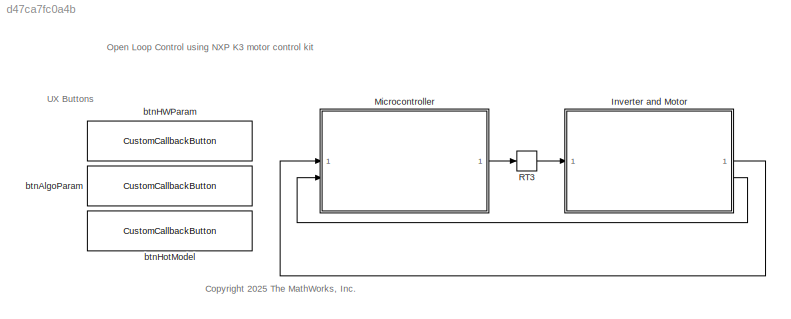
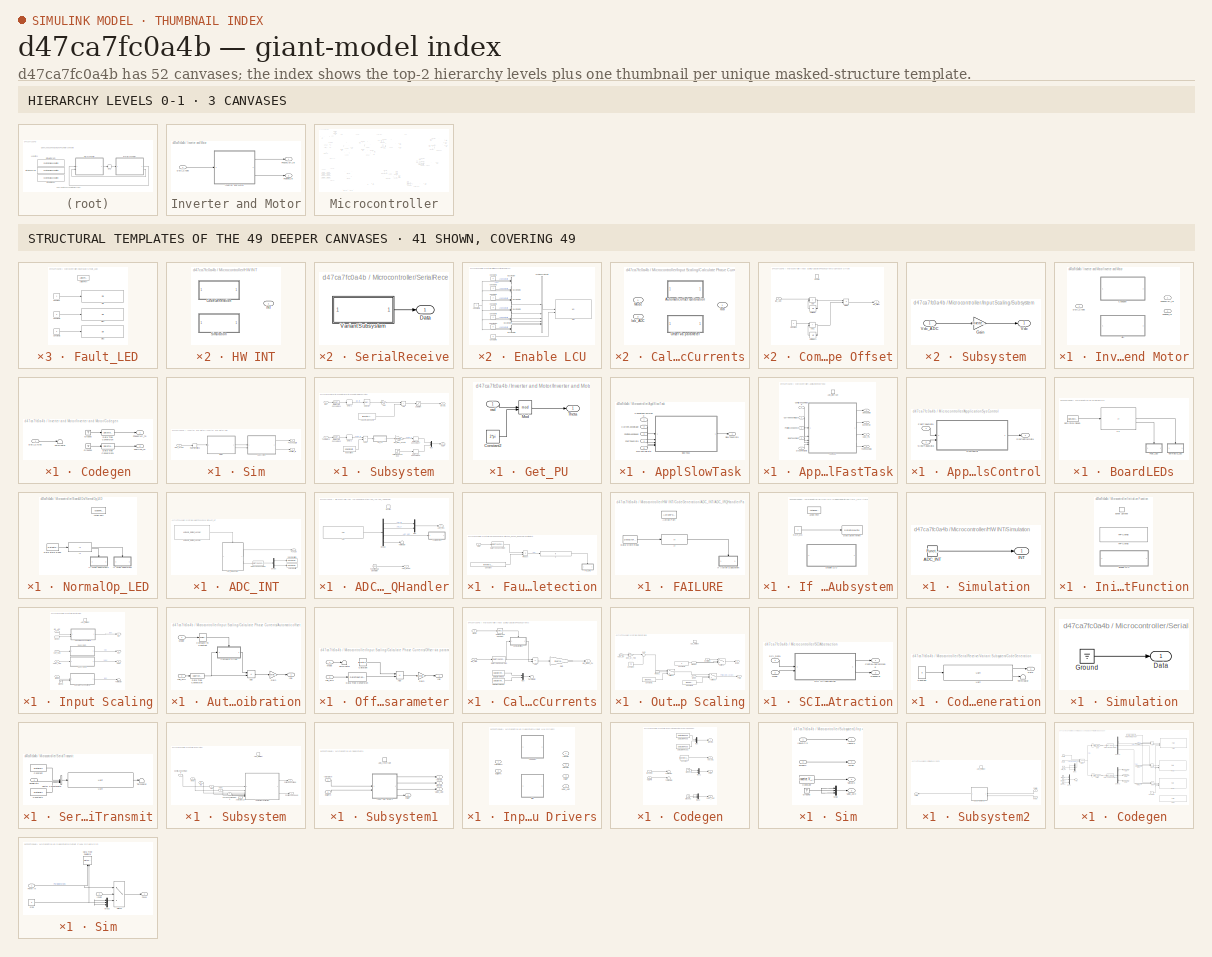
[diagram: thumbnail index - top-2 hierarchy levels (3 canvases) + 41 structural-template representatives of the remaining 49 canvases]
MODEL mdl_d47ca7fc0a4b
KIND model
CONFIG AbsTol = auto
CONFIG EnableMultiTasking = on
CONFIG FixedStep = auto
CONFIG InitFcn = % NXP_MBDT_S32K3 callback: DO NOT REMOVE\nmbd_s32k3.common.nxp.model_callbacks.initFcn();
CONFIG MaxStep = auto
CONFIG MinStep = auto
CONFIG PostLoadFcn = % NXP_MBDT_S32K3 callback: DO NOT REMOVE\nmbd_s32k3.common.nxp.model_callbacks.postLoadFcn();
CONFIG PreLoadFcn = % NXP_MBDT_S32K3 callback: DO NOT REMOVE\nmbd_s32k3.common.nxp.model_callbacks.preLoadFcn();\n\ns32k344Data;\nmcbOpenLoopData;
CONFIG RelTol = 1e-3
CONFIG SampleTimeConstraint = Unconstrained
CONFIG SolverName = FixedStepAuto
CONFIG StartTime = 0.0
CONFIG StopTime = 10.0
BLOCK [SubSystem] Inverter and Motor
  RTWSystemCode = Reusable function
BLOCK [Inport] Inverter and Motor/Duty_Cycles
BLOCK [SubSystem] Inverter and Motor/Inverter and Motor
  Variant = on
  VariantControlMode = sim codegen switching
BLOCK [SubSystem] Inverter and Motor/Inverter and Motor/Codegen
  VariantControl = (codegen)
BLOCK [DataTypeConversion] Inverter and Motor/Inverter and Motor/Codegen/Data Type Conversion
  OutDataTypeStr = uint16
  RndMeth = Simplest
  SaturateOnIntegerOverflow = off
BLOCK [DataTypeConversion] Inverter and Motor/Inverter and Motor/Codegen/Data Type Conversion1
  OutDataTypeStr = uint16
  RndMeth = Simplest
  SaturateOnIntegerOverflow = off
BLOCK [Inport] Inverter and Motor/Inverter and Motor/Codegen/Duty_Cycles
BLOCK [Ground] Inverter and Motor/Inverter and Motor/Codegen/Ground
BLOCK [Ground] Inverter and Motor/Inverter and Motor/Codegen/Ground1
BLOCK [Outport] Inverter and Motor/Inverter and Motor/Codegen/PhaseCurr_fb
BLOCK [Outport] Inverter and Motor/Inverter and Motor/Codegen/Position_fb
  Port = 2
BLOCK [Terminator] Inverter and Motor/Inverter and Motor/Codegen/Terminator
BLOCK [Inport] Inverter and Motor/Inverter and Motor/Duty_Cycles
BLOCK [Outport] Inverter and Motor/Inverter and Motor/PhaseCurr_fb
BLOCK [Outport] Inverter and Motor/Inverter and Motor/Position_fb
  Port = 2
BLOCK [SubSystem] Inverter and Motor/Inverter and Motor/Sim
  VariantControl = (sim)
BLOCK [Inport] Inverter and Motor/Inverter and Motor/Sim/Duty_Cycles
BLOCK [SubSystem] Inverter and Motor/Inverter and Motor/Sim/Motor
  ReferencedSubsystem = MotorPMSMOpenLoop
BLOCK [Outport] Inverter and Motor/Inverter and Motor/Sim/PhaseCurr_fb
BLOCK [Outport] Inverter and Motor/Inverter and Motor/Sim/Position_fb
  Port = 2
BLOCK [RateTransition] Inverter and Motor/Inverter and Motor/Sim/Rate Transition3
  Deterministic = off
  OutPortSampleTime = Ts_inverter
BLOCK [SubSystem] Inverter and Motor/Inverter and Motor/Sim/Subsystem
BLOCK [Sum] Inverter and Motor/Inverter and Motor/Sim/Subsystem/Add
  IconShape = rectangular
  OutDataTypeStr = Inherit: Same as first input
  RndMeth = Simplest
BLOCK [Sum] Inverter and Motor/Inverter and Motor/Sim/Subsystem/Add1
  IconShape = rectangular
  RndMeth = Simplest
BLOCK [DataTypeConversion] Inverter and Motor/Inverter and Motor/Sim/Subsystem/Data Type Conversion2
  OutDataTypeStr = single
  RndMeth = Simplest
  SaturateOnIntegerOverflow = off
BLOCK [DataTypeConversion] Inverter and Motor/Inverter and Motor/Sim/Subsystem/Data Type Conversion4
  OutDataTypeStr = single
  RndMeth = Simplest
  SaturateOnIntegerOverflow = off
BLOCK [DataTypeConversion] Inverter and Motor/Inverter and Motor/Sim/Subsystem/Data Type Conversion6
  OutDataTypeStr = uint16
  RndMeth = Simplest
  SaturateOnIntegerOverflow = off
BLOCK [DataTypeConversion] Inverter and Motor/Inverter and Motor/Sim/Subsystem/Data Type Conversion7
  OutDataTypeStr = uint16
  RndMeth = Simplest
  SaturateOnIntegerOverflow = off
BLOCK [Delay] Inverter and Motor/Inverter and Motor/Sim/Subsystem/Delay1
  InputPortMap = u0
BLOCK [Delay] Inverter and Motor/Inverter and Motor/Sim/Subsystem/Delay2
  InputPortMap = u0
BLOCK [Gain] Inverter and Motor/Inverter and Motor/Sim/Subsystem/Gain
  Gain = 1/inverter.AMPPerCount
  OutDataTypeStr = int16
BLOCK [SubSystem] Inverter and Motor/Inverter and Motor/Sim/Subsystem/Get_PU 
BLOCK [Constant] Inverter and Motor/Inverter and Motor/Sim/Subsystem/Get_PU /Constant2
  OutDataTypeStr = single
  SampleTime = -1
  Value = 2*pi
BLOCK [Math] Inverter and Motor/Inverter and Motor/Sim/Subsystem/Get_PU /Mod
  Operator = mod
BLOCK [Outport] Inverter and Motor/Inverter and Motor/Sim/Subsystem/Get_PU /Theta
  VectorParamsAs1DForOutWhenUnconnected = off
BLOCK [Inport] Inverter and Motor/Inverter and Motor/Sim/Subsystem/Get_PU /rad
BLOCK [Gain] Inverter and Motor/Inverter and Motor/Sim/Subsystem/Get_QEP_Counts
  Gain = pmsm.QEPSlits*4 / (2 * pi)
  OutDataTypeStr = uint16
  RndMeth = Simplest
BLOCK [Outport] Inverter and Motor/Inverter and Motor/Sim/Subsystem/IabADC
BLOCK [Inport] Inverter and Motor/Inverter and Motor/Sim/Subsystem/Iabc
BLOCK [Constant] Inverter and Motor/Inverter and Motor/Sim/Subsystem/IndexOffset
  OutDataTypeStr = single
  SampleTime = -1
  Value = pmsm.PositionOffset
BLOCK [Mux] Inverter and Motor/Inverter and Motor/Sim/Subsystem/Mux
  DisplayOption = bar
  Inputs = 2
BLOCK [Saturate] Inverter and Motor/Inverter and Motor/Sim/Subsystem/Saturation
  LowerLimit = 0
  OutDataTypeStr = uint16
  RndMeth = Simplest
  UpperLimit = inverter.MaxADCCnt
BLOCK [Selector] Inverter and Motor/Inverter and Motor/Sim/Subsystem/Selector
  IndexOptions = Index vector (dialog)
  Indices = [1 2]
  InputPortWidth = 3
  OutputSizes = 1
BLOCK [Step] Inverter and Motor/Inverter and Motor/Sim/Subsystem/Switch to closed loop 
  SampleTime = Ts_motor
  Time = 0.1
BLOCK [Inport] Inverter and Motor/Inverter and Motor/Sim/Subsystem/ThetaMech
  Port = 2
BLOCK [Outport] Inverter and Motor/Inverter and Motor/Sim/Subsystem/eQEP
  Port = 2
BLOCK [Constant] Inverter and Motor/Inverter and Motor/Sim/Subsystem/~1.65V in ADC counts
  OutDataTypeStr = uint16
  SampleTime = -1
  Value = [inverter.AOffset inverter.BOffset]
BLOCK [Outport] Inverter and Motor/PhaseCurr_fb
BLOCK [Outport] Inverter and Motor/Position_fb
  Port = 2
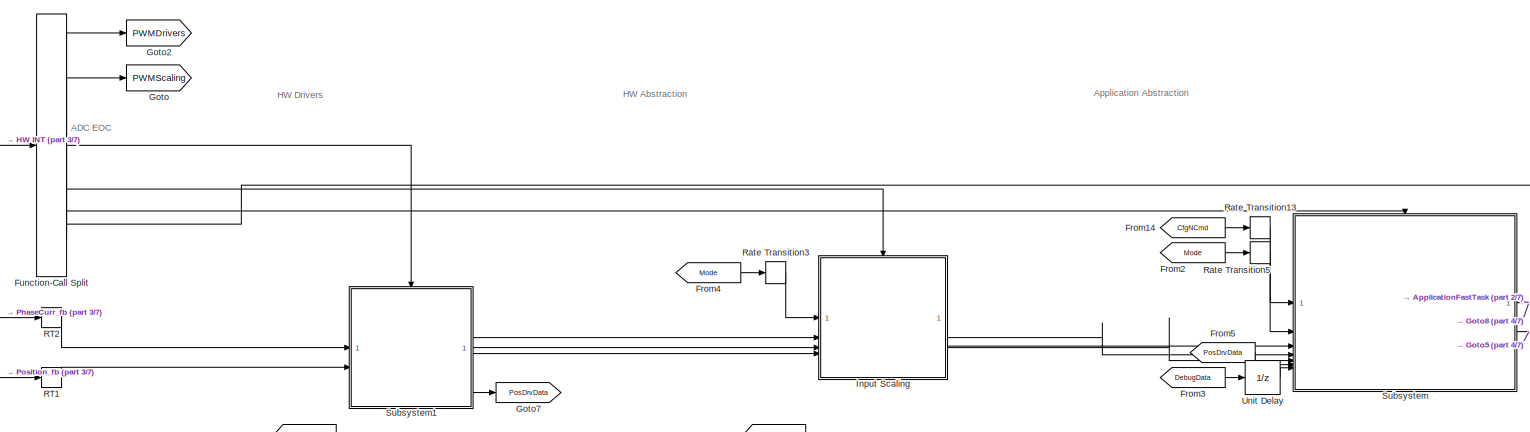
[diagram: Microcontroller - part 1/7, top center region]
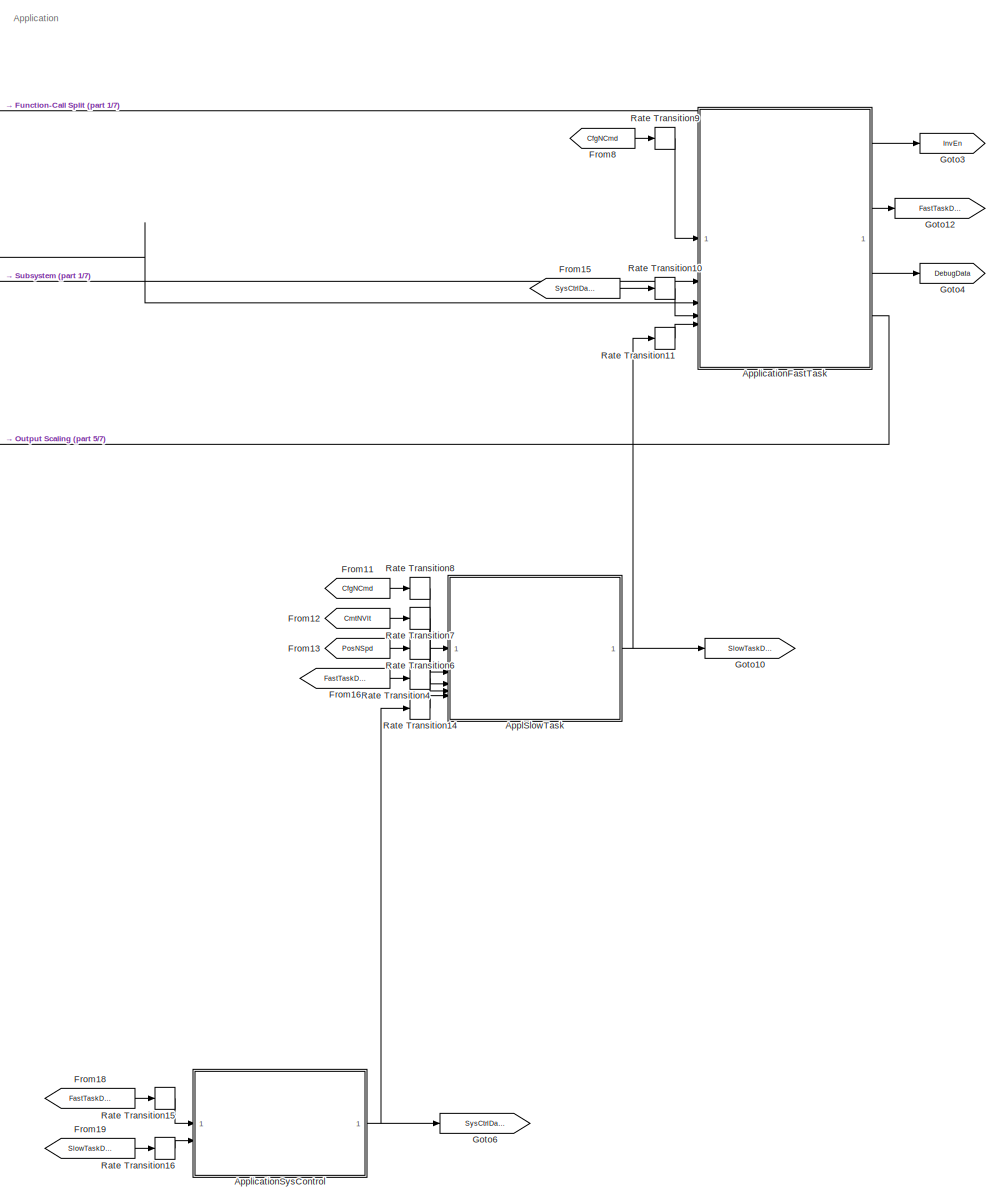
[diagram: Microcontroller - part 2/7, right side, full height]
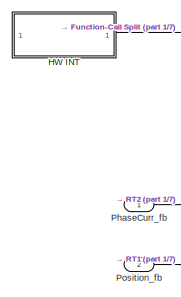
[diagram: Microcontroller - part 3/7, top left region]
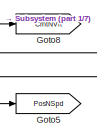
[diagram: Microcontroller - part 4/7, top center region]
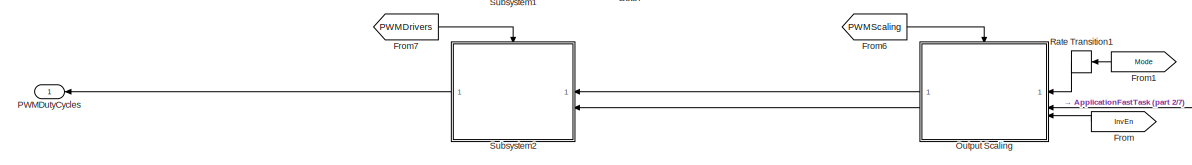
[diagram: Microcontroller - part 5/7, middle left region]
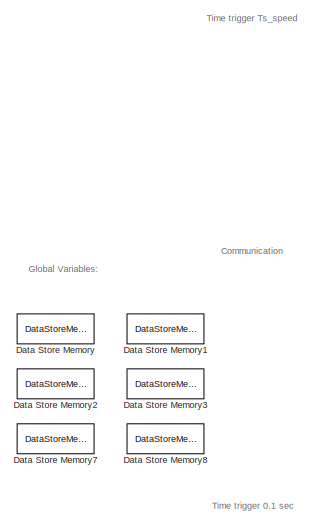
[diagram: Microcontroller - part 6/7, middle left region]
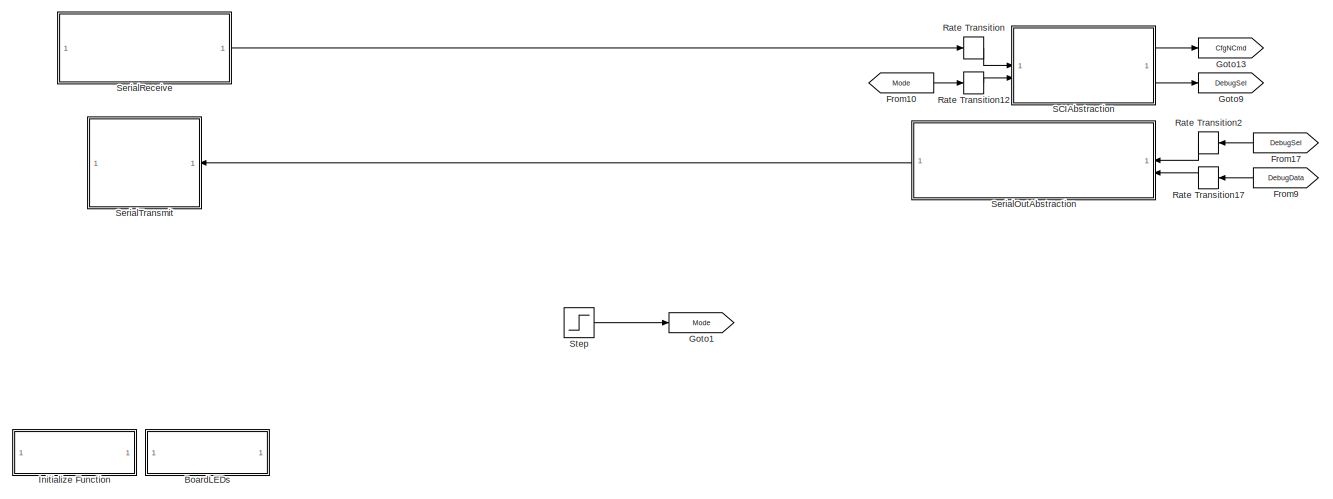
[diagram: Microcontroller - part 7/7, bottom center region]
BLOCK [SubSystem] Microcontroller
BLOCK [SubSystem] Microcontroller/ApplSlowTask
BLOCK [Inport] Microcontroller/ApplSlowTask/ConfigAndCommand
BLOCK [Inport] Microcontroller/ApplSlowTask/CurrentAndVoltage
  Port = 2
BLOCK [Inport] Microcontroller/ApplSlowTask/FastTaskData
  Port = 4
BLOCK [Inport] Microcontroller/ApplSlowTask/PositionAndSpeed
  Port = 3
BLOCK [SubSystem] Microcontroller/ApplSlowTask/SlowTask
  ReferencedSubsystem = ApplicationOpenLoopLowPrio
BLOCK [Outport] Microcontroller/ApplSlowTask/SlowTaskData
BLOCK [Inport] Microcontroller/ApplSlowTask/SysControlData
  Port = 5
BLOCK [SubSystem] Microcontroller/ApplicationFastTask
BLOCK [TriggerPort] Microcontroller/ApplicationFastTask/ADC_Interrupt
  StatesWhenEnabling = held
  TriggerType = function-call
  VariantControl = (inherit)
BLOCK [Inport] Microcontroller/ApplicationFastTask/ConfigAndCommand
BLOCK [Inport] Microcontroller/ApplicationFastTask/CurrentAndVoltage
  Port = 2
BLOCK [Outport] Microcontroller/ApplicationFastTask/DebugData
  Port = 3
BLOCK [SubSystem] Microcontroller/ApplicationFastTask/FastTask
  ReferencedSubsystem = ApplicationOpenLoopHighPrio
BLOCK [Outport] Microcontroller/ApplicationFastTask/FastTaskData
  Port = 2
BLOCK [Outport] Microcontroller/ApplicationFastTask/InverterEn
BLOCK [Inport] Microcontroller/ApplicationFastTask/PositionAndSpeed
  Port = 3
BLOCK [Inport] Microcontroller/ApplicationFastTask/SlowTaskData
  Port = 5
BLOCK [Inport] Microcontroller/ApplicationFastTask/SysControlData
  Port = 4
BLOCK [Outport] Microcontroller/ApplicationFastTask/Vabc_PU
  Port = 4
BLOCK [SubSystem] Microcontroller/ApplicationSysControl
BLOCK [Inport] Microcontroller/ApplicationSysControl/FastTaskData
BLOCK [Inport] Microcontroller/ApplicationSysControl/SlowTaskData
  Port = 2
BLOCK [SubSystem] Microcontroller/ApplicationSysControl/SysControl
  ReferencedSubsystem = ApplicationOpenLoopSysControl
  SystemSampleTime = 0.1
  TreatAsAtomicUnit = on
BLOCK [Outport] Microcontroller/ApplicationSysControl/SysControlData
BLOCK [SubSystem] Microcontroller/BoardLEDs
BLOCK [DataStoreRead] Microcontroller/BoardLEDs/Data Store Read1
  DataStoreName = FAULT
  IndexOptions = Index vector (dialog)
  Indices = 1
  OutputSizes = 1
BLOCK [SubSystem] Microcontroller/BoardLEDs/Fault_LED
  TreatAsAtomicUnit = on
BLOCK [ActionPort] Microcontroller/BoardLEDs/Fault_LED/Action Port
  ActionPortLabel = else
BLOCK [Constant] Microcontroller/BoardLEDs/Fault_LED/Constant
  OutDataTypeStr = uint8
BLOCK [Constant] Microcontroller/BoardLEDs/Fault_LED/Constant1
  OutDataTypeStr = uint8
  Value = 0
BLOCK [Constant] Microcontroller/BoardLEDs/Fault_LED/Constant2
  OutDataTypeStr = uint8
  Value = 0
BLOCK [Reference] Microcontroller/BoardLEDs/Fault_LED/Dio  REF=mbd_s32k3_io_library/Dio
  SourceBlock = mbd_s32k3_io_library/Dio
  SourceProductName = IO Blocks
  SourceType = s32k3_dio
BLOCK [Reference] Microcontroller/BoardLEDs/Fault_LED/Dio1  REF=mbd_s32k3_io_library/Dio
  SourceBlock = mbd_s32k3_io_library/Dio
  SourceProductName = IO Blocks
  SourceType = s32k3_dio
BLOCK [Reference] Microcontroller/BoardLEDs/Fault_LED/Dio2  REF=mbd_s32k3_io_library/Dio
  SourceBlock = mbd_s32k3_io_library/Dio
  SourceProductName = IO Blocks
  SourceType = s32k3_dio
BLOCK [If] Microcontroller/BoardLEDs/If1
  IfExpression = (u1 == 0)
BLOCK [SubSystem] Microcontroller/BoardLEDs/NormalOp_LED
  TreatAsAtomicUnit = on
BLOCK [ActionPort] Microcontroller/BoardLEDs/NormalOp_LED/Action Port
  ActionPortLabel = if((u1 == 0))
BLOCK [DataStoreRead] Microcontroller/BoardLEDs/NormalOp_LED/Data Store Read
  DataStoreName = Enable
  IndexOptions = Index vector (dialog)
  Indices = 1
  OutputSizes = 1
BLOCK [If] Microcontroller/BoardLEDs/NormalOp_LED/If
  IfExpression = u1 == 1
BLOCK [SubSystem] Microcontroller/BoardLEDs/NormalOp_LED/If Action Subsystem
  TreatAsAtomicUnit = on
BLOCK [ActionPort] Microcontroller/BoardLEDs/NormalOp_LED/If Action Subsystem/Action Port
  ActionPortLabel = if(u1 == 1)
BLOCK [Constant] Microcontroller/BoardLEDs/NormalOp_LED/If Action Subsystem/Constant
  OutDataTypeStr = uint8
BLOCK [Constant] Microcontroller/BoardLEDs/NormalOp_LED/If Action Subsystem/Constant1
  OutDataTypeStr = uint8
  Value = 0
BLOCK [Constant] Microcontroller/BoardLEDs/NormalOp_LED/If Action Subsystem/Constant2
  OutDataTypeStr = uint8
  Value = 0
BLOCK [Reference] Microcontroller/BoardLEDs/NormalOp_LED/If Action Subsystem/Dio  REF=mbd_s32k3_io_library/Dio
  SourceBlock = mbd_s32k3_io_library/Dio
  SourceProductName = IO Blocks
  SourceType = s32k3_dio
BLOCK [Reference] Microcontroller/BoardLEDs/NormalOp_LED/If Action Subsystem/Dio1  REF=mbd_s32k3_io_library/Dio
  SourceBlock = mbd_s32k3_io_library/Dio
  SourceProductName = IO Blocks
  SourceType = s32k3_dio
BLOCK [Reference] Microcontroller/BoardLEDs/NormalOp_LED/If Action Subsystem/Dio2  REF=mbd_s32k3_io_library/Dio
  SourceBlock = mbd_s32k3_io_library/Dio
  SourceProductName = IO Blocks
  SourceType = s32k3_dio
BLOCK [SubSystem] Microcontroller/BoardLEDs/NormalOp_LED/If Action Subsystem1
  TreatAsAtomicUnit = on
BLOCK [ActionPort] Microcontroller/BoardLEDs/NormalOp_LED/If Action Subsystem1/Action Port
  ActionPortLabel = else
BLOCK [Constant] Microcontroller/BoardLEDs/NormalOp_LED/If Action Subsystem1/Constant
  OutDataTypeStr = uint8
  Value = 0
BLOCK [Constant] Microcontroller/BoardLEDs/NormalOp_LED/If Action Subsystem1/Constant1
  OutDataTypeStr = uint8
  Value = 0
BLOCK [Constant] Microcontroller/BoardLEDs/NormalOp_LED/If Action Subsystem1/Constant2
  OutDataTypeStr = uint8
BLOCK [Reference] Microcontroller/BoardLEDs/NormalOp_LED/If Action Subsystem1/Dio  REF=mbd_s32k3_io_library/Dio
  SourceBlock = mbd_s32k3_io_library/Dio
  SourceProductName = IO Blocks
  SourceType = s32k3_dio
BLOCK [Reference] Microcontroller/BoardLEDs/NormalOp_LED/If Action Subsystem1/Dio1  REF=mbd_s32k3_io_library/Dio
  SourceBlock = mbd_s32k3_io_library/Dio
  SourceProductName = IO Blocks
  SourceType = s32k3_dio
BLOCK [Reference] Microcontroller/BoardLEDs/NormalOp_LED/If Action Subsystem1/Dio2  REF=mbd_s32k3_io_library/Dio
  SourceBlock = mbd_s32k3_io_library/Dio
  SourceProductName = IO Blocks
  SourceType = s32k3_dio
BLOCK [DataStoreMemory] Microcontroller/Data Store Memory
  DataStoreName = ADC_A
  OutDataTypeStr = single
  ShowAdditionalParam = off
BLOCK [DataStoreMemory] Microcontroller/Data Store Memory1
  DataStoreName = ADC_B
  OutDataTypeStr = single
  ShowAdditionalParam = off
BLOCK [DataStoreMemory] Microcontroller/Data Store Memory2
  DataStoreName = IaOffset
  InitialValue = inverter.AOffset
  ShowAdditionalParam = off
BLOCK [DataStoreMemory] Microcontroller/Data Store Memory3
  DataStoreName = IbOffset
  InitialValue = inverter.BOffset
  ShowAdditionalParam = off
BLOCK [DataStoreMemory] Microcontroller/Data Store Memory7
  DataStoreName = FAULT
  OutDataTypeStr = boolean
  ShowAdditionalParam = off
  WriteAfterReadMsg = warning
  WriteAfterWriteMsg = warning
BLOCK [DataStoreMemory] Microcontroller/Data Store Memory8
  DataStoreName = Enable
  OutDataTypeStr = boolean
  ReadBeforeWriteMsg = warning
  ShowAdditionalParam = off
  WriteAfterReadMsg = warning
  WriteAfterWriteMsg = warning
BLOCK [From] Microcontroller/From
  GotoTag = InvEn
BLOCK [From] Microcontroller/From1
  GotoTag = Mode
BLOCK [From] Microcontroller/From10
  GotoTag = Mode
BLOCK [From] Microcontroller/From11
  GotoTag = CfgNCmd
BLOCK [From] Microcontroller/From12
  GotoTag = CrntNVlt
BLOCK [From] Microcontroller/From13
  GotoTag = PosNSpd
BLOCK [From] Microcontroller/From14
  GotoTag = CfgNCmd
BLOCK [From] Microcontroller/From15
  GotoTag = SysCtrlData
BLOCK [From] Microcontroller/From16
  GotoTag = FastTaskData
BLOCK [From] Microcontroller/From17
  GotoTag = DebugSel
BLOCK [From] Microcontroller/From18
  GotoTag = FastTaskData
BLOCK [From] Microcontroller/From19
  GotoTag = SlowTaskData
BLOCK [From] Microcontroller/From2
  GotoTag = Mode
BLOCK [From] Microcontroller/From3
  GotoTag = DebugData
BLOCK [From] Microcontroller/From4
  GotoTag = Mode
BLOCK [From] Microcontroller/From5
  GotoTag = PosDrvData
BLOCK [From] Microcontroller/From6
  GotoTag = PWMScaling
BLOCK [From] Microcontroller/From7
  GotoTag = PWMDrivers
BLOCK [From] Microcontroller/From8
  GotoTag = CfgNCmd
BLOCK [From] Microcontroller/From9
  GotoTag = DebugData
BLOCK [FunctionCallSplit] Microcontroller/Function-Call Split
  IconShape = distinctive
  NumOutputPorts = 6
BLOCK [Goto] Microcontroller/Goto
  GotoTag = PWMScaling
BLOCK [Goto] Microcontroller/Goto1
  GotoTag = Mode
BLOCK [Goto] Microcontroller/Goto10
  GotoTag = SlowTaskData
BLOCK [Goto] Microcontroller/Goto12
  GotoTag = FastTaskData
BLOCK [Goto] Microcontroller/Goto13
  GotoTag = CfgNCmd
BLOCK [Goto] Microcontroller/Goto2
  GotoTag = PWMDrivers
BLOCK [Goto] Microcontroller/Goto3
  GotoTag = InvEn
BLOCK [Goto] Microcontroller/Goto4
  GotoTag = DebugData
BLOCK [Goto] Microcontroller/Goto5
  GotoTag = PosNSpd
BLOCK [Goto] Microcontroller/Goto6
  GotoTag = SysCtrlData
BLOCK [Goto] Microcontroller/Goto7
  GotoTag = PosDrvData
BLOCK [Goto] Microcontroller/Goto8
  GotoTag = CrntNVlt
BLOCK [Goto] Microcontroller/Goto9
  GotoTag = DebugSel
BLOCK [SubSystem] Microcontroller/HW INT
  Variant = on
  VariantControlMode = sim codegen switching
BLOCK [SubSystem] Microcontroller/HW INT/CodeGeneration
  VariantControl = (codegen)
BLOCK [SubSystem] Microcontroller/HW INT/CodeGeneration/ADC_INT
  TreatAsAtomicUnit = on
BLOCK [SubSystem] Microcontroller/HW INT/CodeGeneration/ADC_INT/ADC_IRQHandler
  TreatAsAtomicUnit = on
BLOCK [Outport] Microcontroller/HW INT/CodeGeneration/ADC_INT/ADC_IRQHandler/ADC_Event
BLOCK [Outport] Microcontroller/HW INT/CodeGeneration/ADC_INT/ADC_IRQHandler/ADC_Res
  Port = 2
BLOCK [Reference] Microcontroller/HW INT/CodeGeneration/ADC_INT/ADC_IRQHandler/Adc  REF=mbd_s32k3_io_library/Adc
  Priority = 0
  SourceBlock = mbd_s32k3_io_library/Adc
  SourceProductName = IO Blocks
  SourceType = s32k3_adc
BLOCK [Demux] Microcontroller/HW INT/CodeGeneration/ADC_INT/ADC_IRQHandler/Demux
BLOCK [SubSystem] Microcontroller/HW INT/CodeGeneration/ADC_INT/ADC_IRQHandler/Fault Detection
  RTWSystemCode = Nonreusable function
  TreatAsAtomicUnit = on
BLOCK [Constant] Microcontroller/HW INT/CodeGeneration/ADC_INT/ADC_IRQHandler/Fault Detection/Constant
  OutDataTypeStr = single
  SampleTime = -1
  Value = inverter.V_max/inverter.MaxADCCnt
BLOCK [DataTypeConversion] Microcontroller/HW INT/CodeGeneration/ADC_INT/ADC_IRQHandler/Fault Detection/Data Type Conversion
  OutDataTypeStr = single
  RndMeth = Floor
  SaturateOnIntegerOverflow = off
BLOCK [SubSystem] Microcontroller/HW INT/CodeGeneration/ADC_INT/ADC_IRQHandler/Fault Detection/FAILURE
  TreatAsAtomicUnit = on
BLOCK [ActionPort] Microcontroller/HW INT/CodeGeneration/ADC_INT/ADC_IRQHandler/Fault Detection/FAILURE/Action Port
  ActionPortLabel = if((u1 < underVoltage) | (u1 > overVoltage))
BLOCK [DataStoreRead] Microcontroller/HW INT/CodeGeneration/ADC_INT/ADC_IRQHandler/Fault Detection/FAILURE/Data Store Read
  DataStoreName = FAULT
  IndexOptions = Index vector (dialog)
  Indices = 1
  OutputSizes = 1
BLOCK [If] Microcontroller/HW INT/CodeGeneration/ADC_INT/ADC_IRQHandler/Fault Detection/FAILURE/If
  IfExpression = u1 == 0
  ShowElse = off
BLOCK [SubSystem] Microcontroller/HW INT/CodeGeneration/ADC_INT/ADC_IRQHandler/Fault Detection/FAILURE/If Action Subsystem
  TreatAsAtomicUnit = on
BLOCK [ActionPort] Microcontroller/HW INT/CodeGeneration/ADC_INT/ADC_IRQHandler/Fault Detection/FAILURE/If Action Subsystem/Action Port
  ActionPortLabel = if(u1 == 0)
BLOCK [DataStoreWrite] Microcontroller/HW INT/CodeGeneration/ADC_INT/ADC_IRQHandler/Fault Detection/FAILURE/If Action Subsystem/Data Store Write
  DataStoreName = FAULT
  IndexOptions = Index vector (dialog)
  Indices = 1
  OutputSizes = 1
BLOCK [SubSystem] Microcontroller/HW INT/CodeGeneration/ADC_INT/ADC_IRQHandler/Fault Detection/FAILURE/If Action Subsystem/Disable LCU
  Priority = 3
BLOCK [BusCreator] Microcontroller/HW INT/CodeGeneration/ADC_INT/ADC_IRQHandler/Fault Detection/FAILURE/If Action Subsystem/Disable LCU/Bus Creator
  DisplayOption = bar
  InheritFromInputs = on
  Inputs = LogicOutputId,Value
  NonVirtualBus = on
  OutDataTypeStr = Bus: Mcl_LcuSyncOutputValueType
BLOCK [BusCreator] Microcontroller/HW INT/CodeGeneration/ADC_INT/ADC_IRQHandler/Fault Detection/FAILURE/If Action Subsystem/Disable LCU/Bus Creator1
  DisplayOption = bar
  InheritFromInputs = on
  Inputs = LogicOutputId,Value
  NonVirtualBus = on
  OutDataTypeStr = Bus: Mcl_LcuSyncOutputValueType
BLOCK [BusCreator] Microcontroller/HW INT/CodeGeneration/ADC_INT/ADC_IRQHandler/Fault Detection/FAILURE/If Action Subsystem/Disable LCU/Bus Creator2
  DisplayOption = bar
  InheritFromInputs = on
  Inputs = LogicOutputId,Value
  NonVirtualBus = on
  OutDataTypeStr = Bus: Mcl_LcuSyncOutputValueType
BLOCK [BusCreator] Microcontroller/HW INT/CodeGeneration/ADC_INT/ADC_IRQHandler/Fault Detection/FAILURE/If Action Subsystem/Disable LCU/Bus Creator3
  DisplayOption = bar
  InheritFromInputs = on
  Inputs = LogicOutputId,Value
  NonVirtualBus = on
  OutDataTypeStr = Bus: Mcl_LcuSyncOutputValueType
BLOCK [BusCreator] Microcontroller/HW INT/CodeGeneration/ADC_INT/ADC_IRQHandler/Fault Detection/FAILURE/If Action Subsystem/Disable LCU/Bus Creator4
  DisplayOption = bar
  InheritFromInputs = on
  Inputs = LogicOutputId,Value
  NonVirtualBus = on
  OutDataTypeStr = Bus: Mcl_LcuSyncOutputValueType
BLOCK [BusCreator] Microcontroller/HW INT/CodeGeneration/ADC_INT/ADC_IRQHandler/Fault Detection/FAILURE/If Action Subsystem/Disable LCU/Bus Creator5
  DisplayOption = bar
  InheritFromInputs = on
  Inputs = LogicOutputId,Value
  NonVirtualBus = on
  OutDataTypeStr = Bus: Mcl_LcuSyncOutputValueType
BLOCK [Constant] Microcontroller/HW INT/CodeGeneration/ADC_INT/ADC_IRQHandler/Fault Detection/FAILURE/If Action Subsystem/Disable LCU/Constant1
  OutDataTypeStr = uint8
  Value = 0
BLOCK [Constant] Microcontroller/HW INT/CodeGeneration/ADC_INT/ADC_IRQHandler/Fault Detection/FAILURE/If Action Subsystem/Disable LCU/Constant10
  OutDataTypeStr = uint8
  Value = 5
BLOCK [Constant] Microcontroller/HW INT/CodeGeneration/ADC_INT/ADC_IRQHandler/Fault Detection/FAILURE/If Action Subsystem/Disable LCU/Constant2
  OutDataTypeStr = uint16
  Value = 0
BLOCK [Constant] Microcontroller/HW INT/CodeGeneration/ADC_INT/ADC_IRQHandler/Fault Detection/FAILURE/If Action Subsystem/Disable LCU/Constant3
  OutDataTypeStr = uint8
BLOCK [Constant] Microcontroller/HW INT/CodeGeneration/ADC_INT/ADC_IRQHandler/Fault Detection/FAILURE/If Action Subsystem/Disable LCU/Constant4
  OutDataTypeStr = uint8
  Value = 2
BLOCK [Constant] Microcontroller/HW INT/CodeGeneration/ADC_INT/ADC_IRQHandler/Fault Detection/FAILURE/If Action Subsystem/Disable LCU/Constant5
  OutDataTypeStr = uint8
  Value = 6
BLOCK [Constant] Microcontroller/HW INT/CodeGeneration/ADC_INT/ADC_IRQHandler/Fault Detection/FAILURE/If Action Subsystem/Disable LCU/Constant8
  OutDataTypeStr = uint8
  Value = 3
BLOCK [Constant] Microcontroller/HW INT/CodeGeneration/ADC_INT/ADC_IRQHandler/Fault Detection/FAILURE/If Action Subsystem/Disable LCU/Constant9
  OutDataTypeStr = uint8
  Value = 4
BLOCK [Reference] Microcontroller/HW INT/CodeGeneration/ADC_INT/ADC_IRQHandler/Fault Detection/FAILURE/If Action Subsystem/Disable LCU/MCL  REF=mbd_s32k3_cdd_library/Mcl
  Priority = 2
  SourceBlock = mbd_s32k3_cdd_library/Mcl
  SourceProductName = CDD Blocks
  SourceType = s32k3_mcl
BLOCK [Concatenate] Microcontroller/HW INT/CodeGeneration/ADC_INT/ADC_IRQHandler/Fault Detection/FAILURE/If Action Subsystem/Disable LCU/Vector Concatenate
  NumInputs = 6
BLOCK [Constant] Microcontroller/HW INT/CodeGeneration/ADC_INT/ADC_IRQHandler/Fault Detection/FAILURE/If Action Subsystem/NOT_OK
  OutDataTypeStr = boolean
BLOCK [If] Microcontroller/HW INT/CodeGeneration/ADC_INT/ADC_IRQHandler/Fault Detection/If
  IfExpression = (u1 < underVoltage) | (u1 > overVoltage)
  ShowElse = off
BLOCK [Product] Microcontroller/HW INT/CodeGeneration/ADC_INT/ADC_IRQHandler/Fault Detection/Product
  OutDataTypeStr = single
BLOCK [Inport] Microcontroller/HW INT/CodeGeneration/ADC_INT/ADC_IRQHandler/Fault Detection/VDC
BLOCK [Reference] Microcontroller/HW INT/CodeGeneration/ADC_INT/ADC_IRQHandler/Function-Call Generator  REF=simulink/Ports &
Subsystems/Function-Call
Generator
  Priority = 1
  SourceBlock = simulink/Ports &\nSubsystems/Function-Call\nGenerator
  SourceType = Function-Call Generator
BLOCK [Mux] Microcontroller/HW INT/CodeGeneration/ADC_INT/ADC_IRQHandler/Mux
  DisplayOption = bar
  Inputs = 2
BLOCK [Terminator] Microcontroller/HW INT/CodeGeneration/ADC_INT/ADC_IRQHandler/Terminator
BLOCK [TriggerPort] Microcontroller/HW INT/CodeGeneration/ADC_INT/ADC_IRQHandler/function
  StatesWhenEnabling = held
  TriggerType = function-call
  VariantControl = (inherit)
BLOCK [DataStoreWrite] Microcontroller/HW INT/CodeGeneration/ADC_INT/Data Store Write
  DataStoreName = ADC_A
  IndexOptions = Index vector (dialog)
  Indices = 1
  OutputSizes = 1
BLOCK [DataStoreWrite] Microcontroller/HW INT/CodeGeneration/ADC_INT/Data Store Write1
  DataStoreName = ADC_B
  IndexOptions = Index vector (dialog)
  Indices = 1
  OutputSizes = 1
BLOCK [DataTypeConversion] Microcontroller/HW INT/CodeGeneration/ADC_INT/Data Type Conversion
  OutDataTypeStr = single
  RndMeth = Floor
  SaturateOnIntegerOverflow = off
BLOCK [Demux] Microcontroller/HW INT/CodeGeneration/ADC_INT/Demux
  Outputs = 2
BLOCK [Outport] Microcontroller/HW INT/CodeGeneration/ADC_INT/FcnCall
BLOCK [Reference] Microcontroller/HW INT/CodeGeneration/ADC_INT/Hardware_Interrupt_Handler  REF=mbd_s32k3_isr_library/Hardware_Interrupt_Handler
  SourceBlock = mbd_s32k3_isr_library/Hardware_Interrupt_Handler
  SourceProductName = ISR Blocks
  SourceType = s32k3_isr_handler
BLOCK [Outport] Microcontroller/HW INT/CodeGeneration/INT
BLOCK [Outport] Microcontroller/HW INT/INT
  OutputFunctionCall = on
BLOCK [SubSystem] Microcontroller/HW INT/Simulation
  VariantControl = (sim)
BLOCK [Reference] Microcontroller/HW INT/Simulation/ADC_INT  REF=simulink/Ports &
Subsystems/Function-Call
Generator
  SourceBlock = simulink/Ports &\nSubsystems/Function-Call\nGenerator
  SourceType = Function-Call Generator
BLOCK [Outport] Microcontroller/HW INT/Simulation/INT
  OutputFunctionCall = on
BLOCK [SubSystem] Microcontroller/Initialize Function
  TreatAsAtomicUnit = on
BLOCK [SubSystem] Microcontroller/Initialize Function/Enable LCU
  Priority = 3
BLOCK [BusCreator] Microcontroller/Initialize Function/Enable LCU/Bus Creator
  DisplayOption = bar
  InheritFromInputs = on
  Inputs = LogicOutputId,Value
  NonVirtualBus = on
  OutDataTypeStr = Bus: Mcl_LcuSyncOutputValueType
BLOCK [BusCreator] Microcontroller/Initialize Function/Enable LCU/Bus Creator1
  DisplayOption = bar
  InheritFromInputs = on
  Inputs = LogicOutputId,Value
  NonVirtualBus = on
  OutDataTypeStr = Bus: Mcl_LcuSyncOutputValueType
BLOCK [BusCreator] Microcontroller/Initialize Function/Enable LCU/Bus Creator2
  DisplayOption = bar
  InheritFromInputs = on
  Inputs = LogicOutputId,Value
  NonVirtualBus = on
  OutDataTypeStr = Bus: Mcl_LcuSyncOutputValueType
BLOCK [BusCreator] Microcontroller/Initialize Function/Enable LCU/Bus Creator3
  DisplayOption = bar
  InheritFromInputs = on
  Inputs = LogicOutputId,Value
  NonVirtualBus = on
  OutDataTypeStr = Bus: Mcl_LcuSyncOutputValueType
BLOCK [BusCreator] Microcontroller/Initialize Function/Enable LCU/Bus Creator4
  DisplayOption = bar
  InheritFromInputs = on
  Inputs = LogicOutputId,Value
  NonVirtualBus = on
  OutDataTypeStr = Bus: Mcl_LcuSyncOutputValueType
BLOCK [BusCreator] Microcontroller/Initialize Function/Enable LCU/Bus Creator5
  DisplayOption = bar
  InheritFromInputs = on
  Inputs = LogicOutputId,Value
  NonVirtualBus = on
  OutDataTypeStr = Bus: Mcl_LcuSyncOutputValueType
BLOCK [Constant] Microcontroller/Initialize Function/Enable LCU/Constant1
  OutDataTypeStr = uint8
  Value = 0
BLOCK [Constant] Microcontroller/Initialize Function/Enable LCU/Constant10
  OutDataTypeStr = uint8
  Value = 5
BLOCK [Constant] Microcontroller/Initialize Function/Enable LCU/Constant2
  OutDataTypeStr = uint16
BLOCK [Constant] Microcontroller/Initialize Function/Enable LCU/Constant3
  OutDataTypeStr = uint8
BLOCK [Constant] Microcontroller/Initialize Function/Enable LCU/Constant4
  OutDataTypeStr = uint8
  Value = 2
BLOCK [Constant] Microcontroller/Initialize Function/Enable LCU/Constant5
  OutDataTypeStr = uint8
  Value = 6
BLOCK [Constant] Microcontroller/Initialize Function/Enable LCU/Constant8
  OutDataTypeStr = uint8
  Value = 3
BLOCK [Constant] Microcontroller/Initialize Function/Enable LCU/Constant9
  OutDataTypeStr = uint8
  Value = 4
BLOCK [Reference] Microcontroller/Initialize Function/Enable LCU/MCL  REF=mbd_s32k3_cdd_library/Mcl
  Priority = 2
  SourceBlock = mbd_s32k3_cdd_library/Mcl
  SourceProductName = CDD Blocks
  SourceType = s32k3_mcl
BLOCK [Concatenate] Microcontroller/Initialize Function/Enable LCU/Vector Concatenate
  NumInputs = 6
BLOCK [EventListener] Microcontroller/Initialize Function/Event Listener
  DisableCoverage = on
  EventName = reset
BLOCK [Reference] Microcontroller/Initialize Function/TPP Config  REF=mbd_s32k3_utility_library/TPP Blocks/TPP Config
  SourceBlock = mbd_s32k3_utility_library/TPP Blocks/TPP Config
  SourceProductName = Utility Blocks
  SourceType = s32k3_tpp_config
BLOCK [SubSystem] Microcontroller/Input Scaling
BLOCK [TriggerPort] Microcontroller/Input Scaling/ADC_Interrupt
  StatesWhenEnabling = held
  TriggerType = function-call
  VariantControl = (inherit)
BLOCK [SubSystem] Microcontroller/Input Scaling/Calculate Phase Currents
  Commented = on
  Variant = on
BLOCK [SubSystem] Microcontroller/Input Scaling/Calculate Phase Currents/Automatic offset calibration
  VariantControl = inverter.ADCOffsetCalibEnable == 1
BLOCK [Sum] Microcontroller/Input Scaling/Calculate Phase Currents/Automatic offset calibration/Add
  IconShape = rectangular
  Inputs = -+
BLOCK [Reference] Microcontroller/Input Scaling/Calculate Phase Currents/Automatic offset calibration/Compare To Constant  REF=simulink/Logic and Bit
Operations/Compare
To Constant
  SourceBlock = simulink/Logic and Bit\nOperations/Compare\nTo Constant
  SourceType = Compare To Constant
BLOCK [SubSystem] Microcontroller/Input Scaling/Calculate Phase Currents/Automatic offset calibration/Compute Offset
BLOCK [Sum] Microcontroller/Input Scaling/Calculate Phase Currents/Automatic offset calibration/Compute Offset/Add
  IconShape = rectangular
  OutDataTypeStr = Inherit: Same as first input
  RndMeth = Simplest
BLOCK [Sum] Microcontroller/Input Scaling/Calculate Phase Currents/Automatic offset calibration/Compute Offset/Add1
  IconShape = rectangular
  OutDataTypeStr = Inherit: Same as first input
  RndMeth = Simplest
BLOCK [Constant] Microcontroller/Input Scaling/Calculate Phase Currents/Automatic offset calibration/Compute Offset/Constant
  OutDataTypeStr = uint32
  SampleTime = 50e-6
BLOCK [Product] Microcontroller/Input Scaling/Calculate Phase Currents/Automatic offset calibration/Compute Offset/Divide
  Inputs = */
  OutDataTypeStr = Inherit: Same as first input
  RndMeth = Simplest
BLOCK [EnablePort] Microcontroller/Input Scaling/Calculate Phase Currents/Automatic offset calibration/Compute Offset/Enable
BLOCK [Inport] Microcontroller/Input Scaling/Calculate Phase Currents/Automatic offset calibration/Compute Offset/Iab_ADC
BLOCK [Outport] Microcontroller/Input Scaling/Calculate Phase Currents/Automatic offset calibration/Compute Offset/Iab_Offset
BLOCK [UnitDelay] Microcontroller/Input Scaling/Calculate Phase Currents/Automatic offset calibration/Compute Offset/Unit Delay
  HasFrameUpgradeWarning = on
  SampleTime = -1
BLOCK [UnitDelay] Microcontroller/Input Scaling/Calculate Phase Currents/Automatic offset calibration/Compute Offset/Unit Delay1
  HasFrameUpgradeWarning = on
  SampleTime = -1
BLOCK [DataTypeConversion] Microcontroller/Input Scaling/Calculate Phase Currents/Automatic offset calibration/Data Type Conversion
  ConvertRealWorld = Stored Integer (SI)
  OutDataTypeStr = int32
  RndMeth = Simplest
  SaturateOnIntegerOverflow = off
BLOCK [Gain] Microcontroller/Input Scaling/Calculate Phase Currents/Automatic offset calibration/Gain
  Gain = inverter.AMPPerCount
  OutDataTypeStr = dataType
  RndMeth = Simplest
BLOCK [Outport] Microcontroller/Input Scaling/Calculate Phase Currents/Automatic offset calibration/Iab
BLOCK [Inport] Microcontroller/Input Scaling/Calculate Phase Currents/Automatic offset calibration/Iab_ADC
  Port = 2
BLOCK [Inport] Microcontroller/Input Scaling/Calculate Phase Currents/Automatic offset calibration/Mode
BLOCK [Outport] Microcontroller/Input Scaling/Calculate Phase Currents/Iab
BLOCK [Inport] Microcontroller/Input Scaling/Calculate Phase Currents/Iab_ADC
  Port = 2
BLOCK [Inport] Microcontroller/Input Scaling/Calculate Phase Currents/Mode
BLOCK [SubSystem] Microcontroller/Input Scaling/Calculate Phase Currents/Offser via parameter
  VariantControl = inverter.ADCOffsetCalibEnable == 0
BLOCK [Sum] Microcontroller/Input Scaling/Calculate Phase Currents/Offser via parameter/Add
  IconShape = rectangular
  Inputs = -+
  RndMeth = Simplest
BLOCK [Constant] Microcontroller/Input Scaling/Calculate Phase Currents/Offser via parameter/Constant
  OutDataTypeStr = Inherit: Inherit via back propagation
  Value = [inverter.CtSensAOffset inverter.CtSensBOffset]
BLOCK [DataTypeConversion] Microcontroller/Input Scaling/Calculate Phase Currents/Offser via parameter/Data Type Conversion
  ConvertRealWorld = Stored Integer (SI)
  OutDataTypeStr = int32
  RndMeth = Simplest
  SaturateOnIntegerOverflow = off
BLOCK [Gain] Microcontroller/Input Scaling/Calculate Phase Currents/Offser via parameter/Gain
  Gain = inverter.AMPPerCount
  OutDataTypeStr = dataType
  RndMeth = Simplest
BLOCK [Outport] Microcontroller/Input Scaling/Calculate Phase Currents/Offser via parameter/Iab
BLOCK [Inport] Microcontroller/Input Scaling/Calculate Phase Currents/Offser via parameter/Iab_ADC
  Port = 2
BLOCK [Inport] Microcontroller/Input Scaling/Calculate Phase Currents/Offser via parameter/Mode
BLOCK [Terminator] Microcontroller/Input Scaling/Calculate Phase Currents/Offser via parameter/Terminator
BLOCK [SubSystem] Microcontroller/Input Scaling/CalculatePhaseCurrents
  Priority = 0
BLOCK [Sum] Microcontroller/Input Scaling/CalculatePhaseCurrents/Add
  IconShape = rectangular
  Inputs = +-
BLOCK [Reference] Microcontroller/Input Scaling/CalculatePhaseCurrents/Compare To Constant  REF=simulink/Logic and Bit
Operations/Compare
To Constant
  SourceBlock = simulink/Logic and Bit\nOperations/Compare\nTo Constant
  SourceType = Compare To Constant
BLOCK [SubSystem] Microcontroller/Input Scaling/CalculatePhaseCurrents/Compute Offset
BLOCK [Sum] Microcontroller/Input Scaling/CalculatePhaseCurrents/Compute Offset/Add
  IconShape = rectangular
  OutDataTypeStr = Inherit: Same as first input
  RndMeth = Simplest
BLOCK [Sum] Microcontroller/Input Scaling/CalculatePhaseCurrents/Compute Offset/Add1
  IconShape = rectangular
  OutDataTypeStr = Inherit: Same as first input
  RndMeth = Simplest
BLOCK [Constant] Microcontroller/Input Scaling/CalculatePhaseCurrents/Compute Offset/Constant
  OutDataTypeStr = uint32
  SampleTime = -1
BLOCK [Product] Microcontroller/Input Scaling/CalculatePhaseCurrents/Compute Offset/Divide
  Inputs = */
  OutDataTypeStr = Inherit: Same as first input
  RndMeth = Simplest
BLOCK [EnablePort] Microcontroller/Input Scaling/CalculatePhaseCurrents/Compute Offset/Enable
BLOCK [Inport] Microcontroller/Input Scaling/CalculatePhaseCurrents/Compute Offset/Iab_ADC
BLOCK [Outport] Microcontroller/Input Scaling/CalculatePhaseCurrents/Compute Offset/Iab_Offset
BLOCK [UnitDelay] Microcontroller/Input Scaling/CalculatePhaseCurrents/Compute Offset/Unit Delay
  HasFrameUpgradeWarning = on
  SampleTime = -1
BLOCK [UnitDelay] Microcontroller/Input Scaling/CalculatePhaseCurrents/Compute Offset/Unit Delay1
  HasFrameUpgradeWarning = on
  SampleTime = -1
BLOCK [DataStoreRead] Microcontroller/Input Scaling/CalculatePhaseCurrents/Data Store Read
  DataStoreName = IaOffset
  IndexOptions = Index vector (dialog)
  Indices = 1
  OutputSizes = 1
BLOCK [DataStoreRead] Microcontroller/Input Scaling/CalculatePhaseCurrents/Data Store Read1
  DataStoreName = IbOffset
  IndexOptions = Index vector (dialog)
  Indices = 1
  OutputSizes = 1
BLOCK [DataTypeConversion] Microcontroller/Input Scaling/CalculatePhaseCurrents/Data Type Conversion
  OutDataTypeStr = single
  RndMeth = Floor
  SaturateOnIntegerOverflow = off
BLOCK [Gain] Microcontroller/Input Scaling/CalculatePhaseCurrents/Gain
  Gain = inverter.AMPPerCount
  OutDataTypeStr = Inherit: Same as input
  RndMeth = Simplest
BLOCK [Inport] Microcontroller/Input Scaling/CalculatePhaseCurrents/Iab_ADC
BLOCK [Outport] Microcontroller/Input Scaling/CalculatePhaseCurrents/Iab_meas_PU
BLOCK [Inport] Microcontroller/Input Scaling/CalculatePhaseCurrents/Mode
  Port = 2
BLOCK [Mux] Microcontroller/Input Scaling/CalculatePhaseCurrents/Mux
  DisplayOption = bar
  Inputs = 2
BLOCK [Terminator] Microcontroller/Input Scaling/CalculatePhaseCurrents/Terminator
BLOCK [Ground] Microcontroller/Input Scaling/Ground
BLOCK [Outport] Microcontroller/Input Scaling/Iab
BLOCK [Inport] Microcontroller/Input Scaling/Iab_ADC
  Port = 2
BLOCK [Inport] Microcontroller/Input Scaling/Mode
BLOCK [InportShadow] Microcontroller/Input Scaling/Mode1
BLOCK [SubSystem] Microcontroller/Input Scaling/Subsystem
BLOCK [Gain] Microcontroller/Input Scaling/Subsystem/Gain
  Gain = inverter.VoltPerCount
  OutDataTypeStr = dataType
  RndMeth = Simplest
BLOCK [Outport] Microcontroller/Input Scaling/Subsystem/Vdc
BLOCK [Inport] Microcontroller/Input Scaling/Subsystem/Vdc_ADC
BLOCK [SubSystem] Microcontroller/Input Scaling/Subsystem1
BLOCK [Gain] Microcontroller/Input Scaling/Subsystem1/Gain
  Gain = inverter.VoltPerCount
  OutDataTypeStr = dataType
  RndMeth = Simplest
BLOCK [Outport] Microcontroller/Input Scaling/Subsystem1/Vabc
BLOCK [Inport] Microcontroller/Input Scaling/Subsystem1/Vabc_ADC
BLOCK [Terminator] Microcontroller/Input Scaling/Terminator
BLOCK [Outport] Microcontroller/Input Scaling/Vabc
  Port = 3
BLOCK [Inport] Microcontroller/Input Scaling/Vabc_ADC
  Port = 4
BLOCK [Outport] Microcontroller/Input Scaling/Vdc
  Port = 2
BLOCK [Inport] Microcontroller/Input Scaling/Vdc_ADC
  Port = 3
BLOCK [SubSystem] Microcontroller/Output Scaling
BLOCK [TriggerPort] Microcontroller/Output Scaling/ADC_Interrupt
  StatesWhenEnabling = held
  TriggerType = function-call
  VariantControl = (inherit)
BLOCK [Constant] Microcontroller/Output Scaling/Constant
  OutDataTypeStr = dataType
  SampleTime = -1
  Value = 0.5
BLOCK [Constant] Microcontroller/Output Scaling/Constant1
  OutDataTypeStr = dataType
  SampleTime = -1
  Value = [0.6 0.45 0.45]
BLOCK [Constant] Microcontroller/Output Scaling/Constant2
  OutDataTypeStr = dataType
  SampleTime = -1
BLOCK [Constant] Microcontroller/Output Scaling/Constant3
  OutDataTypeStr = dataType
  SampleTime = -1
  Value = [0.5 0.5 0.5]
BLOCK [Outport] Microcontroller/Output Scaling/InvEn
  Port = 2
BLOCK [Inport] Microcontroller/Output Scaling/InverterEn
  Port = 3
BLOCK [Inport] Microcontroller/Output Scaling/Mode
BLOCK [InportShadow] Microcontroller/Output Scaling/Mode1
BLOCK [InportShadow] Microcontroller/Output Scaling/Mode2
BLOCK [Gain] Microcontroller/Output Scaling/One_by_Two
  Gain = 0.5
  OutDataTypeStr = Inherit: Same as input
  RndMeth = Simplest
BLOCK [Outport] Microcontroller/Output Scaling/PWM
BLOCK [Sum] Microcontroller/Output Scaling/Sum
  AccumDataTypeStr = Inherit: Same as first input
  Inputs = |++
BLOCK [Switch] Microcontroller/Output Scaling/Switch1
  InputSameDT = off
  SaturateOnIntegerOverflow = off
  Threshold = 2
BLOCK [Switch] Microcontroller/Output Scaling/Switch2
  InputSameDT = off
  SaturateOnIntegerOverflow = off
  Threshold = 1
BLOCK [Switch] Microcontroller/Output Scaling/Switch3
  InputSameDT = off
  SaturateOnIntegerOverflow = off
  Threshold = 2
BLOCK [Inport] Microcontroller/Output Scaling/Vabc_ref
  Port = 2
BLOCK [Outport] Microcontroller/PWMDutyCycles
BLOCK [Inport] Microcontroller/PhaseCurr_fb
BLOCK [Inport] Microcontroller/Position_fb
  Port = 2
BLOCK [RateTransition] Microcontroller/RT1
  Deterministic = off
BLOCK [RateTransition] Microcontroller/RT2
  Deterministic = off
BLOCK [RateTransition] Microcontroller/Rate Transition
  Deterministic = off
BLOCK [RateTransition] Microcontroller/Rate Transition1
  Deterministic = off
  OutPortSampleTime = Ts
BLOCK [RateTransition] Microcontroller/Rate Transition10
  Deterministic = off
  OutPortSampleTime = Ts
BLOCK [RateTransition] Microcontroller/Rate Transition11
  Deterministic = off
  OutPortSampleTime = Ts
BLOCK [RateTransition] Microcontroller/Rate Transition12
  Deterministic = off
BLOCK [RateTransition] Microcontroller/Rate Transition13
  Deterministic = off
  OutPortSampleTime = Ts
BLOCK [RateTransition] Microcontroller/Rate Transition14
  Deterministic = off
  OutPortSampleTime = Ts_speed
BLOCK [RateTransition] Microcontroller/Rate Transition15
  Deterministic = off
  OutPortSampleTime = 0.1
BLOCK [RateTransition] Microcontroller/Rate Transition16
  Deterministic = off
  OutPortSampleTime = 0.1
BLOCK [RateTransition] Microcontroller/Rate Transition17
  Deterministic = off
  OutPortSampleTime = 0.01
BLOCK [RateTransition] Microcontroller/Rate Transition2
  Deterministic = off
  OutPortSampleTime = 0.01
BLOCK [RateTransition] Microcontroller/Rate Transition3
  Deterministic = off
  OutPortSampleTime = Ts
BLOCK [RateTransition] Microcontroller/Rate Transition4
  Deterministic = off
  OutPortSampleTime = Ts_speed
BLOCK [RateTransition] Microcontroller/Rate Transition5
  Deterministic = off
  OutPortSampleTime = Ts
BLOCK [RateTransition] Microcontroller/Rate Transition6
  Deterministic = off
  OutPortSampleTime = Ts_speed
BLOCK [RateTransition] Microcontroller/Rate Transition7
  Deterministic = off
  OutPortSampleTime = Ts_speed
BLOCK [RateTransition] Microcontroller/Rate Transition8
  Deterministic = off
  OutPortSampleTime = Ts_speed
BLOCK [RateTransition] Microcontroller/Rate Transition9
  Deterministic = off
  OutPortSampleTime = Ts
BLOCK [SubSystem] Microcontroller/SCIAbstraction
BLOCK [Outport] Microcontroller/SCIAbstraction/ConfigAndCommand
BLOCK [Outport] Microcontroller/SCIAbstraction/DebugSel
  Port = 2
BLOCK [Inport] Microcontroller/SCIAbstraction/Mode
  Port = 2
BLOCK [SubSystem] Microcontroller/SCIAbstraction/SCI In Abstraction
  ReferencedSubsystem = SCIInAbstractionOpenLoop
BLOCK [Inport] Microcontroller/SCIAbstraction/SCI_Data
BLOCK [SubSystem] Microcontroller/SerialOutAbstraction
  ReferencedSubsystem = SCIOutAbstractionOpenLoop
BLOCK [SubSystem] Microcontroller/SerialReceive
  SystemSampleTime = 0.1
  TreatAsAtomicUnit = on
BLOCK [Outport] Microcontroller/SerialReceive/Data
BLOCK [SubSystem] Microcontroller/SerialReceive/Variant Subsystem
  Variant = on
  VariantControlMode = sim codegen switching
BLOCK [SubSystem] Microcontroller/SerialReceive/Variant Subsystem/CodeGeneration
  VariantControl = (codegen)
BLOCK [Constant] Microcontroller/SerialReceive/Variant Subsystem/CodeGeneration/Constant
  OutDataTypeStr = Inherit: Inherit via back propagation
  Value = 8
BLOCK [Outport] Microcontroller/SerialReceive/Variant Subsystem/CodeGeneration/Data
BLOCK [Terminator] Microcontroller/SerialReceive/Variant Subsystem/CodeGeneration/Terminator
BLOCK [Reference] Microcontroller/SerialReceive/Variant Subsystem/CodeGeneration/Uart  REF=mbd_s32k3_cdd_library/Uart
  SourceBlock = mbd_s32k3_cdd_library/Uart
  SourceProductName = CDD Blocks
  SourceType = s32k3_uart
BLOCK [Outport] Microcontroller/SerialReceive/Variant Subsystem/Data
BLOCK [SubSystem] Microcontroller/SerialReceive/Variant Subsystem/Simulation
  VariantControl = (sim)
BLOCK [Outport] Microcontroller/SerialReceive/Variant Subsystem/Simulation/Data
BLOCK [Ground] Microcontroller/SerialReceive/Variant Subsystem/Simulation/Ground
BLOCK [SubSystem] Microcontroller/SerialTransmit
  SystemSampleTime = 0.01
  TreatAsAtomicUnit = on
BLOCK [Constant] Microcontroller/SerialTransmit/Constant
  OutDataTypeStr = uint8
  Value = uint8('S')
BLOCK [Constant] Microcontroller/SerialTransmit/Constant1
  OutDataTypeStr = uint8
  Value = uint8('E')
BLOCK [Inport] Microcontroller/SerialTransmit/SerialData
BLOCK [Terminator] Microcontroller/SerialTransmit/Terminator
BLOCK [Reference] Microcontroller/SerialTransmit/Uart  REF=mbd_s32k3_cdd_library/Uart
  SourceBlock = mbd_s32k3_cdd_library/Uart
  SourceProductName = CDD Blocks
  SourceType = s32k3_uart
BLOCK [Concatenate] Microcontroller/SerialTransmit/Vector Concatenate
  NumInputs = 3
BLOCK [Step] Microcontroller/Step
  After = 2
  OutDataTypeStr = single
  SampleTime = 0.1
BLOCK [SubSystem] Microcontroller/Subsystem
BLOCK [TriggerPort] Microcontroller/Subsystem/ADC_Interrupt
  StatesWhenEnabling = held
  TriggerType = function-call
  VariantControl = (inherit)
BLOCK [SubSystem] Microcontroller/Subsystem/Application Abstraction
  ReferencedSubsystem = ApplicationAbstractionOpenLoop
BLOCK [Inport] Microcontroller/Subsystem/Application_fb
  Port = 7
BLOCK [Inport] Microcontroller/Subsystem/ConfigAndCommand
BLOCK [Outport] Microcontroller/Subsystem/CurrentAndVoltage
BLOCK [Inport] Microcontroller/Subsystem/Iab
  Port = 3
BLOCK [Inport] Microcontroller/Subsystem/Mode
  Port = 2
BLOCK [Inport] Microcontroller/Subsystem/PosSenseDriverData
  Port = 6
BLOCK [Outport] Microcontroller/Subsystem/PositionAndSpeed
  Port = 2
BLOCK [Inport] Microcontroller/Subsystem/Vabc
  Port = 5
BLOCK [Inport] Microcontroller/Subsystem/Vdc
  Port = 4
BLOCK [SubSystem] Microcontroller/Subsystem1
BLOCK [TriggerPort] Microcontroller/Subsystem1/ADC_Interrupt
  StatesWhenEnabling = held
  TriggerType = function-call
  VariantControl = (inherit)
BLOCK [Outport] Microcontroller/Subsystem1/IabADC
BLOCK [Inport] Microcontroller/Subsystem1/IabADCIn
BLOCK [SubSystem] Microcontroller/Subsystem1/Input HW Drivers
  Variant = on
  VariantControlMode = sim codegen switching
BLOCK [SubSystem] Microcontroller/Subsystem1/Input HW Drivers/Codegen
  VariantControl = (codegen)
BLOCK [Constant] Microcontroller/Subsystem1/Input HW Drivers/Codegen/Constant
  OutDataTypeStr = uint16
  SampleTime = -1
  Value = inverter.V_dc/inverter.VoltPerCount
BLOCK [DataStoreRead] Microcontroller/Subsystem1/Input HW Drivers/Codegen/Data Store Read
  DataStoreName = ADC_A
  IndexOptions = Index vector (dialog)
  Indices = 1
  OutputSizes = 1
BLOCK [DataStoreRead] Microcontroller/Subsystem1/Input HW Drivers/Codegen/Data Store Read1
  DataStoreName = ADC_B
  IndexOptions = Index vector (dialog)
  Indices = 1
  OutputSizes = 1
BLOCK [Ground] Microcontroller/Subsystem1/Input HW Drivers/Codegen/Ground
BLOCK [Ground] Microcontroller/Subsystem1/Input HW Drivers/Codegen/Ground1
BLOCK [Outport] Microcontroller/Subsystem1/Input HW Drivers/Codegen/IabADC
BLOCK [Inport] Microcontroller/Subsystem1/Input HW Drivers/Codegen/IabADCIn
BLOCK [Mux] Microcontroller/Subsystem1/Input HW Drivers/Codegen/Mux
  DisplayOption = bar
  Inputs = 2
BLOCK [Mux] Microcontroller/Subsystem1/Input HW Drivers/Codegen/Mux1
  DisplayOption = bar
  Inputs = 2
BLOCK [Mux] Microcontroller/Subsystem1/Input HW Drivers/Codegen/Mux2
  DisplayOption = bar
  Inputs = 3
BLOCK [Terminator] Microcontroller/Subsystem1/Input HW Drivers/Codegen/Terminator
BLOCK [Terminator] Microcontroller/Subsystem1/Input HW Drivers/Codegen/Terminator1
BLOCK [Outport] Microcontroller/Subsystem1/Input HW Drivers/Codegen/Vabc_ADC
  Port = 4
BLOCK [Outport] Microcontroller/Subsystem1/Input HW Drivers/Codegen/VdcADC
  Port = 2
BLOCK [Outport] Microcontroller/Subsystem1/Input HW Drivers/Codegen/eQEP
  Port = 3
BLOCK [Inport] Microcontroller/Subsystem1/Input HW Drivers/Codegen/eQEPIn
  Port = 2
BLOCK [Outport] Microcontroller/Subsystem1/Input HW Drivers/IabADC
BLOCK [Inport] Microcontroller/Subsystem1/Input HW Drivers/IabADCIn
BLOCK [SubSystem] Microcontroller/Subsystem1/Input HW Drivers/Sim
  VariantControl = (sim)
BLOCK [Constant] Microcontroller/Subsystem1/Input HW Drivers/Sim/Constant
  OutDataTypeStr = uint16
  SampleTime = -1
  Value = inverter.V_dc/inverter.VoltPerCount
BLOCK [Ground] Microcontroller/Subsystem1/Input HW Drivers/Sim/Ground
BLOCK [Outport] Microcontroller/Subsystem1/Input HW Drivers/Sim/IabADC
BLOCK [Inport] Microcontroller/Subsystem1/Input HW Drivers/Sim/IabADCIn
BLOCK [Mux] Microcontroller/Subsystem1/Input HW Drivers/Sim/Mux
  DisplayOption = bar
  Inputs = 3
BLOCK [Outport] Microcontroller/Subsystem1/Input HW Drivers/Sim/Vabc_ADC
  Port = 3
BLOCK [Outport] Microcontroller/Subsystem1/Input HW Drivers/Sim/VdcADC
  Port = 2
BLOCK [Outport] Microcontroller/Subsystem1/Input HW Drivers/Sim/eQEP
  Port = 4
BLOCK [Inport] Microcontroller/Subsystem1/Input HW Drivers/Sim/eQEPIn
  Port = 2
BLOCK [Outport] Microcontroller/Subsystem1/Input HW Drivers/Vabc_ADC
  Port = 3
BLOCK [Outport] Microcontroller/Subsystem1/Input HW Drivers/VdcADC
  Port = 2
BLOCK [Outport] Microcontroller/Subsystem1/Input HW Drivers/eQEP
  Port = 4
BLOCK [Inport] Microcontroller/Subsystem1/Input HW Drivers/eQEPIn
  Port = 2
BLOCK [Outport] Microcontroller/Subsystem1/Vabc_ADC
  Port = 3
BLOCK [Outport] Microcontroller/Subsystem1/VdcADC
  Port = 2
BLOCK [Outport] Microcontroller/Subsystem1/eQEP
  Port = 4
BLOCK [Inport] Microcontroller/Subsystem1/eQEPIn
  Port = 2
BLOCK [SubSystem] Microcontroller/Subsystem2
BLOCK [TriggerPort] Microcontroller/Subsystem2/ADC_Interrupt
  StatesWhenEnabling = held
  TriggerType = function-call
  VariantControl = (inherit)
BLOCK [Inport] Microcontroller/Subsystem2/InvEn
  Port = 2
BLOCK [SubSystem] Microcontroller/Subsystem2/Output PWM Drivers
  Variant = on
  VariantControlMode = sim codegen switching
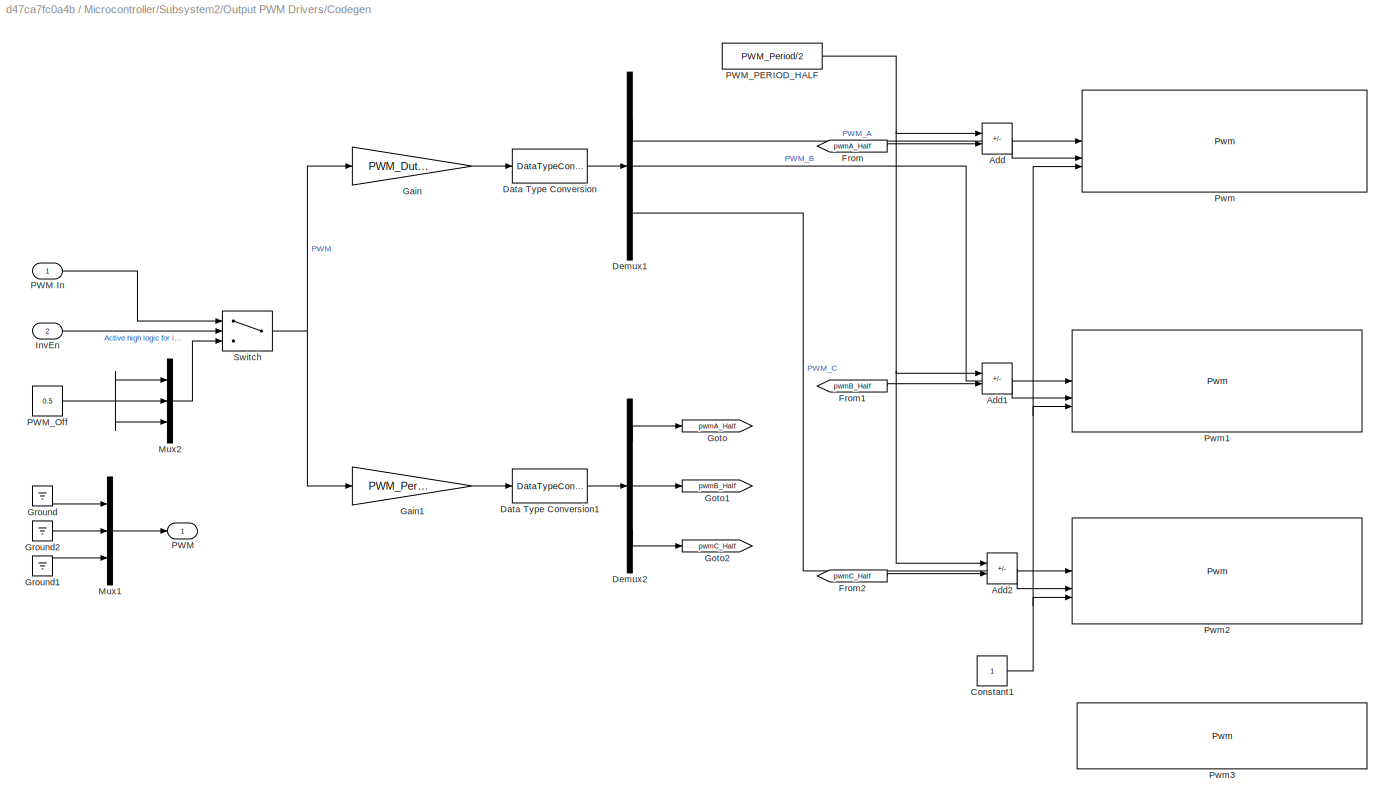
BLOCK [SubSystem] Microcontroller/Subsystem2/Output PWM Drivers/Codegen
  VariantControl = (codegen)
BLOCK [Sum] Microcontroller/Subsystem2/Output PWM Drivers/Codegen/Add
  IconShape = rectangular
  Inputs = +-
  OutDataTypeStr = uint16
BLOCK [Sum] Microcontroller/Subsystem2/Output PWM Drivers/Codegen/Add1
  IconShape = rectangular
  Inputs = +-
  OutDataTypeStr = uint16
BLOCK [Sum] Microcontroller/Subsystem2/Output PWM Drivers/Codegen/Add2
  IconShape = rectangular
  Inputs = +-
  OutDataTypeStr = uint16
BLOCK [Constant] Microcontroller/Subsystem2/Output PWM Drivers/Codegen/Constant1
  OutDataTypeStr = boolean
  SampleTime = -1
BLOCK [DataTypeConversion] Microcontroller/Subsystem2/Output PWM Drivers/Codegen/Data Type Conversion
  OutDataTypeStr = uint16
  RndMeth = Floor
  SaturateOnIntegerOverflow = off
BLOCK [DataTypeConversion] Microcontroller/Subsystem2/Output PWM Drivers/Codegen/Data Type Conversion1
  OutDataTypeStr = uint16
  RndMeth = Floor
  SaturateOnIntegerOverflow = off
BLOCK [Demux] Microcontroller/Subsystem2/Output PWM Drivers/Codegen/Demux1
  Outputs = 3
BLOCK [Demux] Microcontroller/Subsystem2/Output PWM Drivers/Codegen/Demux2
  Outputs = 3
BLOCK [From] Microcontroller/Subsystem2/Output PWM Drivers/Codegen/From
  GotoTag = pwmA_Half
BLOCK [From] Microcontroller/Subsystem2/Output PWM Drivers/Codegen/From1
  GotoTag = pwmB_Half
BLOCK [From] Microcontroller/Subsystem2/Output PWM Drivers/Codegen/From2
  GotoTag = pwmC_Half
BLOCK [Gain] Microcontroller/Subsystem2/Output PWM Drivers/Codegen/Gain
  Gain = PWM_DutyScale
  OutDataTypeStr = single
BLOCK [Gain] Microcontroller/Subsystem2/Output PWM Drivers/Codegen/Gain1
  Gain = PWM_Period/2
  OutDataTypeStr = single
BLOCK [Goto] Microcontroller/Subsystem2/Output PWM Drivers/Codegen/Goto
  GotoTag = pwmA_Half
BLOCK [Goto] Microcontroller/Subsystem2/Output PWM Drivers/Codegen/Goto1
  GotoTag = pwmB_Half
BLOCK [Goto] Microcontroller/Subsystem2/Output PWM Drivers/Codegen/Goto2
  GotoTag = pwmC_Half
BLOCK [Ground] Microcontroller/Subsystem2/Output PWM Drivers/Codegen/Ground
BLOCK [Ground] Microcontroller/Subsystem2/Output PWM Drivers/Codegen/Ground1
BLOCK [Ground] Microcontroller/Subsystem2/Output PWM Drivers/Codegen/Ground2
BLOCK [Inport] Microcontroller/Subsystem2/Output PWM Drivers/Codegen/InvEn
  Port = 2
BLOCK [Mux] Microcontroller/Subsystem2/Output PWM Drivers/Codegen/Mux1
  DisplayOption = bar
  Inputs = 3
BLOCK [Mux] Microcontroller/Subsystem2/Output PWM Drivers/Codegen/Mux2
  DisplayOption = bar
  Inputs = 3
BLOCK [Outport] Microcontroller/Subsystem2/Output PWM Drivers/Codegen/PWM
BLOCK [Inport] Microcontroller/Subsystem2/Output PWM Drivers/Codegen/PWM In
BLOCK [Constant] Microcontroller/Subsystem2/Output PWM Drivers/Codegen/PWM_Off
  OutDataTypeStr = single
  Value = 0.5
BLOCK [Constant] Microcontroller/Subsystem2/Output PWM Drivers/Codegen/PWM_PERIOD_HALF
  OutDataTypeStr = uint16
  Value = PWM_Period/2
BLOCK [Reference] Microcontroller/Subsystem2/Output PWM Drivers/Codegen/Pwm  REF=mbd_s32k3_io_library/Pwm
  SourceBlock = mbd_s32k3_io_library/Pwm
  SourceProductName = IO Blocks
  SourceType = s32k3_pwm
BLOCK [Reference] Microcontroller/Subsystem2/Output PWM Drivers/Codegen/Pwm1  REF=mbd_s32k3_io_library/Pwm
  SourceBlock = mbd_s32k3_io_library/Pwm
  SourceProductName = IO Blocks
  SourceType = s32k3_pwm
BLOCK [Reference] Microcontroller/Subsystem2/Output PWM Drivers/Codegen/Pwm2  REF=mbd_s32k3_io_library/Pwm
  SourceBlock = mbd_s32k3_io_library/Pwm
  SourceProductName = IO Blocks
  SourceType = s32k3_pwm
BLOCK [Reference] Microcontroller/Subsystem2/Output PWM Drivers/Codegen/Pwm3  REF=mbd_s32k3_io_library/Pwm
  SourceBlock = mbd_s32k3_io_library/Pwm
  SourceProductName = IO Blocks
  SourceType = s32k3_pwm
BLOCK [Switch] Microcontroller/Subsystem2/Output PWM Drivers/Codegen/Switch
  InputSameDT = off
  OutDataTypeStr = single
  SaturateOnIntegerOverflow = off
  Threshold = 0.5
BLOCK [Inport] Microcontroller/Subsystem2/Output PWM Drivers/InvEn
  Port = 2
BLOCK [Outport] Microcontroller/Subsystem2/Output PWM Drivers/PWM
BLOCK [Inport] Microcontroller/Subsystem2/Output PWM Drivers/PWM In
BLOCK [SubSystem] Microcontroller/Subsystem2/Output PWM Drivers/Sim
  VariantControl = (sim)
BLOCK [DataTypeDuplicate] Microcontroller/Subsystem2/Output PWM Drivers/Sim/Data Type Duplicate
BLOCK [Inport] Microcontroller/Subsystem2/Output PWM Drivers/Sim/InvEn
  Port = 2
BLOCK [Mux] Microcontroller/Subsystem2/Output PWM Drivers/Sim/Mux2
  DisplayOption = bar
  Inputs = 3
BLOCK [Outport] Microcontroller/Subsystem2/Output PWM Drivers/Sim/PWM
BLOCK [Inport] Microcontroller/Subsystem2/Output PWM Drivers/Sim/PWM In
BLOCK [Switch] Microcontroller/Subsystem2/Output PWM Drivers/Sim/Switch
  InputSameDT = off
  RndMeth = Simplest
  SaturateOnIntegerOverflow = off
  Threshold = 0.5
BLOCK [Constant] Microcontroller/Subsystem2/Output PWM Drivers/Sim/stop
  OutDataTypeStr = Inherit: Inherit via back propagation
  Value = 0
BLOCK [Outport] Microcontroller/Subsystem2/PWM
BLOCK [Inport] Microcontroller/Subsystem2/PWM In
BLOCK [UnitDelay] Microcontroller/Unit Delay
  HasFrameUpgradeWarning = on
  SampleTime = -1
BLOCK [RateTransition] RT3
  Integrity = off
BLOCK [CustomCallbackButton] btnAlgoParam
  Configuration = {"components":[{"name":"BackgroundImageComponent","settings":{"image":{"size":[0,0],"src":"default","srcOrientation":"Right"},"position":[0,0,1,1]}},{"name":"ButtonStateComponent","settings":{"buttonType":"momentary","clickFcn":"edit mcbOpenLoopData.m;","onValue":1,"position":[0,0,1,1],"pressDelay":"500","pressFcn":"","repeatInterval":"0","states":[{"horizontalAlignment":"center","image":{"positio...<+2150ch>
  CustomBackgroundColor = {"color":[0.9568627451,0.9568627451,0.9568627451],"show":true}
BLOCK [CustomCallbackButton] btnHWParam
  Configuration = {"components":[{"name":"BackgroundImageComponent","settings":{"image":{"size":[0,0],"src":"default","srcOrientation":"Right"},"position":[0,0,1,1]}},{"name":"ButtonStateComponent","settings":{"buttonType":"momentary","clickFcn":"edit s32k344Data.m;","onValue":1,"position":[0,0,1,1],"pressDelay":"500","pressFcn":"","repeatInterval":"0","states":[{"horizontalAlignment":"center","image":{"position":[...<+2102ch>
  CustomBackgroundColor = {"color":[0.9568627451,0.9568627451,0.9568627451],"show":true}
BLOCK [CustomCallbackButton] btnHotModel
  Configuration = {"components":[{"name":"BackgroundImageComponent","settings":{"image":{"size":[0,0],"src":"default","srcOrientation":"Right"},"position":[0,0,1,1]}},{"name":"ButtonStateComponent","settings":{"buttonType":"momentary","clickFcn":"OpenLoopControlHost;","onValue":1,"position":[0,0,1,1],"pressDelay":"500","pressFcn":"","repeatInterval":"0","states":[{"horizontalAlignment":"center","image":{"position":...<+2067ch>
  CustomBackgroundColor = {"color":[0.9568627451,0.9568627451,0.9568627451],"show":true}
ANNOTATION (root): <copyright redacted>
ANNOTATION (root): Open Loop Control using NXP K3 motor control kit
ANNOTATION (root): UX Buttons
ANNOTATION Microcontroller: Global Variables:
ANNOTATION Microcontroller: ADC EOC
ANNOTATION Microcontroller: Application
ANNOTATION Microcontroller: Application Abstraction
ANNOTATION Microcontroller: Communication
ANNOTATION Microcontroller: HW Abstraction
ANNOTATION Microcontroller: HW Drivers
ANNOTATION Microcontroller: Time trigger 0.1 sec
ANNOTATION Microcontroller: Time trigger Ts_speed
LINE Inverter and Motor/Duty_Cycles:1 -> Inverter and Motor/Inverter and Motor:1
LINE Inverter and Motor/Inverter and Motor/Codegen/Data Type Conversion1:1 -> Inverter and Motor/Inverter and Motor/Codegen/Position_fb:1
LINE Inverter and Motor/Inverter and Motor/Codegen/Data Type Conversion:1 -> Inverter and Motor/Inverter and Motor/Codegen/PhaseCurr_fb:1
LINE Inverter and Motor/Inverter and Motor/Codegen/Duty_Cycles:1 -> Inverter and Motor/Inverter and Motor/Codegen/Terminator:1
LINE Inverter and Motor/Inverter and Motor/Codegen/Ground1:1 -> Inverter and Motor/Inverter and Motor/Codegen/Data Type Conversion1:1
LINE Inverter and Motor/Inverter and Motor/Codegen/Ground:1 -> Inverter and Motor/Inverter and Motor/Codegen/Data Type Conversion:1
LINE Inverter and Motor/Inverter and Motor/Sim/Duty_Cycles:1 -> Inverter and Motor/Inverter and Motor/Sim/Rate Transition3:1
LINE Inverter and Motor/Inverter and Motor/Sim/Motor:1 -> Inverter and Motor/Inverter and Motor/Sim/Subsystem:1
LINE Inverter and Motor/Inverter and Motor/Sim/Motor:2 -> Inverter and Motor/Inverter and Motor/Sim/Subsystem:2
LINE Inverter and Motor/Inverter and Motor/Sim/Rate Transition3:1 -> Inverter and Motor/Inverter and Motor/Sim/Motor:1
LINE Inverter and Motor/Inverter and Motor/Sim/Subsystem/Add1:1 -> Inverter and Motor/Inverter and Motor/Sim/Subsystem/Get_PU :1
LINE Inverter and Motor/Inverter and Motor/Sim/Subsystem/Add:1 -> Inverter and Motor/Inverter and Motor/Sim/Subsystem/Saturation:1
LINE Inverter and Motor/Inverter and Motor/Sim/Subsystem/Data Type Conversion2:1 -> Inverter and Motor/Inverter and Motor/Sim/Subsystem/Delay2:1
LINE Inverter and Motor/Inverter and Motor/Sim/Subsystem/Data Type Conversion4:1 -> Inverter and Motor/Inverter and Motor/Sim/Subsystem/Delay1:1
LINE Inverter and Motor/Inverter and Motor/Sim/Subsystem/Data Type Conversion6:1 -> Inverter and Motor/Inverter and Motor/Sim/Subsystem/Mux:2
LINE Inverter and Motor/Inverter and Motor/Sim/Subsystem/Data Type Conversion7:1 -> Inverter and Motor/Inverter and Motor/Sim/Subsystem/Mux:1
LINE Inverter and Motor/Inverter and Motor/Sim/Subsystem/Delay1:1 -> Inverter and Motor/Inverter and Motor/Sim/Subsystem/Selector:1
LINE Inverter and Motor/Inverter and Motor/Sim/Subsystem/Delay2:1 -> Inverter and Motor/Inverter and Motor/Sim/Subsystem/Add1:1
LINE Inverter and Motor/Inverter and Motor/Sim/Subsystem/Gain:1 -> Inverter and Motor/Inverter and Motor/Sim/Subsystem/Add:1
LINE Inverter and Motor/Inverter and Motor/Sim/Subsystem/Get_PU /Constant2:1 -> Inverter and Motor/Inverter and Motor/Sim/Subsystem/Get_PU /Mod:2
LINE Inverter and Motor/Inverter and Motor/Sim/Subsystem/Get_PU /Mod:1 -> Inverter and Motor/Inverter and Motor/Sim/Subsystem/Get_PU /Theta:1
LINE Inverter and Motor/Inverter and Motor/Sim/Subsystem/Get_PU /rad:1 -> Inverter and Motor/Inverter and Motor/Sim/Subsystem/Get_PU /Mod:1
LINE Inverter and Motor/Inverter and Motor/Sim/Subsystem/Get_PU :1 -> Inverter and Motor/Inverter and Motor/Sim/Subsystem/Get_QEP_Counts:1
LINE Inverter and Motor/Inverter and Motor/Sim/Subsystem/Get_QEP_Counts:1 -> Inverter and Motor/Inverter and Motor/Sim/Subsystem/Data Type Conversion7:1
LINE Inverter and Motor/Inverter and Motor/Sim/Subsystem/Iabc:1 -> Inverter and Motor/Inverter and Motor/Sim/Subsystem/Data Type Conversion4:1
LINE Inverter and Motor/Inverter and Motor/Sim/Subsystem/IndexOffset:1 -> Inverter and Motor/Inverter and Motor/Sim/Subsystem/Add1:2
LINE Inverter and Motor/Inverter and Motor/Sim/Subsystem/Mux:1 -> Inverter and Motor/Inverter and Motor/Sim/Subsystem/eQEP:1
LINE Inverter and Motor/Inverter and Motor/Sim/Subsystem/Saturation:1 -> Inverter and Motor/Inverter and Motor/Sim/Subsystem/IabADC:1
LINE Inverter and Motor/Inverter and Motor/Sim/Subsystem/Selector:1 -> Inverter and Motor/Inverter and Motor/Sim/Subsystem/Gain:1
LINE Inverter and Motor/Inverter and Motor/Sim/Subsystem/Switch to closed loop :1 -> Inverter and Motor/Inverter and Motor/Sim/Subsystem/Data Type Conversion6:1
LINE Inverter and Motor/Inverter and Motor/Sim/Subsystem/ThetaMech:1 -> Inverter and Motor/Inverter and Motor/Sim/Subsystem/Data Type Conversion2:1
LINE Inverter and Motor/Inverter and Motor/Sim/Subsystem/~1.65V in ADC counts:1 -> Inverter and Motor/Inverter and Motor/Sim/Subsystem/Add:2
LINE Inverter and Motor/Inverter and Motor/Sim/Subsystem:1 -> Inverter and Motor/Inverter and Motor/Sim/PhaseCurr_fb:1
LINE Inverter and Motor/Inverter and Motor/Sim/Subsystem:2 -> Inverter and Motor/Inverter and Motor/Sim/Position_fb:1
LINE Inverter and Motor/Inverter and Motor:1 -> Inverter and Motor/PhaseCurr_fb:1
LINE Inverter and Motor/Inverter and Motor:2 -> Inverter and Motor/Position_fb:1
LINE Inverter and Motor:1 -> Microcontroller:1
LINE Inverter and Motor:2 -> Microcontroller:2
LINE Microcontroller/ApplSlowTask/ConfigAndCommand:1 -> Microcontroller/ApplSlowTask/SlowTask:1
LINE Microcontroller/ApplSlowTask/CurrentAndVoltage:1 -> Microcontroller/ApplSlowTask/SlowTask:2
LINE Microcontroller/ApplSlowTask/FastTaskData:1 -> Microcontroller/ApplSlowTask/SlowTask:4
LINE Microcontroller/ApplSlowTask/PositionAndSpeed:1 -> Microcontroller/ApplSlowTask/SlowTask:3
LINE Microcontroller/ApplSlowTask/SlowTask:1 -> Microcontroller/ApplSlowTask/SlowTaskData:1
LINE Microcontroller/ApplSlowTask/SysControlData:1 -> Microcontroller/ApplSlowTask/SlowTask:5
NET Microcontroller/ApplSlowTask:1 -> Microcontroller/Goto10:1, Microcontroller/Rate Transition11:1
LINE Microcontroller/ApplicationFastTask/ConfigAndCommand:1 -> Microcontroller/ApplicationFastTask/FastTask:1
LINE Microcontroller/ApplicationFastTask/CurrentAndVoltage:1 -> Microcontroller/ApplicationFastTask/FastTask:2
LINE Microcontroller/ApplicationFastTask/FastTask:1 -> Microcontroller/ApplicationFastTask/DebugData:1
LINE Microcontroller/ApplicationFastTask/FastTask:2 -> Microcontroller/ApplicationFastTask/InverterEn:1
LINE Microcontroller/ApplicationFastTask/FastTask:3 -> Microcontroller/ApplicationFastTask/Vabc_PU:1
LINE Microcontroller/ApplicationFastTask/FastTask:4 -> Microcontroller/ApplicationFastTask/FastTaskData:1
LINE Microcontroller/ApplicationFastTask/PositionAndSpeed:1 -> Microcontroller/ApplicationFastTask/FastTask:3
LINE Microcontroller/ApplicationFastTask/SlowTaskData:1 -> Microcontroller/ApplicationFastTask/FastTask:4
LINE Microcontroller/ApplicationFastTask/SysControlData:1 -> Microcontroller/ApplicationFastTask/FastTask:5
LINE Microcontroller/ApplicationFastTask:1 -> Microcontroller/Goto3:1
LINE Microcontroller/ApplicationFastTask:2 -> Microcontroller/Goto12:1
LINE Microcontroller/ApplicationFastTask:3 -> Microcontroller/Goto4:1
LINE Microcontroller/ApplicationFastTask:4 -> Microcontroller/Output Scaling:2
LINE Microcontroller/ApplicationSysControl/FastTaskData:1 -> Microcontroller/ApplicationSysControl/SysControl:1
LINE Microcontroller/ApplicationSysControl/SlowTaskData:1 -> Microcontroller/ApplicationSysControl/SysControl:2
LINE Microcontroller/ApplicationSysControl/SysControl:1 -> Microcontroller/ApplicationSysControl/SysControlData:1
NET Microcontroller/ApplicationSysControl:1 -> Microcontroller/Goto6:1, Microcontroller/Rate Transition14:1
LINE Microcontroller/BoardLEDs/Data Store Read1:1 -> Microcontroller/BoardLEDs/If1:1
LINE Microcontroller/BoardLEDs/Fault_LED/Constant1:1 -> Microcontroller/BoardLEDs/Fault_LED/Dio1:1
LINE Microcontroller/BoardLEDs/Fault_LED/Constant2:1 -> Microcontroller/BoardLEDs/Fault_LED/Dio2:1
LINE Microcontroller/BoardLEDs/Fault_LED/Constant:1 -> Microcontroller/BoardLEDs/Fault_LED/Dio:1
LINE Microcontroller/BoardLEDs/If1:1 -> Microcontroller/BoardLEDs/NormalOp_LED:ifaction
LINE Microcontroller/BoardLEDs/If1:2 -> Microcontroller/BoardLEDs/Fault_LED:ifaction
LINE Microcontroller/BoardLEDs/NormalOp_LED/Data Store Read:1 -> Microcontroller/BoardLEDs/NormalOp_LED/If:1
LINE Microcontroller/BoardLEDs/NormalOp_LED/If Action Subsystem/Constant1:1 -> Microcontroller/BoardLEDs/NormalOp_LED/If Action Subsystem/Dio1:1
LINE Microcontroller/BoardLEDs/NormalOp_LED/If Action Subsystem/Constant2:1 -> Microcontroller/BoardLEDs/NormalOp_LED/If Action Subsystem/Dio2:1
LINE Microcontroller/BoardLEDs/NormalOp_LED/If Action Subsystem/Constant:1 -> Microcontroller/BoardLEDs/NormalOp_LED/If Action Subsystem/Dio:1
LINE Microcontroller/BoardLEDs/NormalOp_LED/If Action Subsystem1/Constant1:1 -> Microcontroller/BoardLEDs/NormalOp_LED/If Action Subsystem1/Dio1:1
LINE Microcontroller/BoardLEDs/NormalOp_LED/If Action Subsystem1/Constant2:1 -> Microcontroller/BoardLEDs/NormalOp_LED/If Action Subsystem1/Dio2:1
LINE Microcontroller/BoardLEDs/NormalOp_LED/If Action Subsystem1/Constant:1 -> Microcontroller/BoardLEDs/NormalOp_LED/If Action Subsystem1/Dio:1
LINE Microcontroller/BoardLEDs/NormalOp_LED/If:1 -> Microcontroller/BoardLEDs/NormalOp_LED/If Action Subsystem:ifaction
LINE Microcontroller/BoardLEDs/NormalOp_LED/If:2 -> Microcontroller/BoardLEDs/NormalOp_LED/If Action Subsystem1:ifaction
LINE Microcontroller/From10:1 -> Microcontroller/Rate Transition12:1
LINE Microcontroller/From11:1 -> Microcontroller/Rate Transition8:1
LINE Microcontroller/From12:1 -> Microcontroller/Rate Transition7:1
LINE Microcontroller/From13:1 -> Microcontroller/Rate Transition6:1
LINE Microcontroller/From14:1 -> Microcontroller/Rate Transition13:1
LINE Microcontroller/From15:1 -> Microcontroller/Rate Transition10:1
LINE Microcontroller/From16:1 -> Microcontroller/Rate Transition4:1
LINE Microcontroller/From17:1 -> Microcontroller/Rate Transition2:1
LINE Microcontroller/From18:1 -> Microcontroller/Rate Transition15:1
LINE Microcontroller/From19:1 -> Microcontroller/Rate Transition16:1
LINE Microcontroller/From1:1 -> Microcontroller/Rate Transition1:1
LINE Microcontroller/From2:1 -> Microcontroller/Rate Transition5:1
LINE Microcontroller/From3:1 -> Microcontroller/Unit Delay:1
LINE Microcontroller/From4:1 -> Microcontroller/Rate Transition3:1
LINE Microcontroller/From5:1 -> Microcontroller/Subsystem:6
LINE Microcontroller/From6:1 -> Microcontroller/Output Scaling:trigger
LINE Microcontroller/From7:1 -> Microcontroller/Subsystem2:trigger
LINE Microcontroller/From8:1 -> Microcontroller/Rate Transition9:1
LINE Microcontroller/From9:1 -> Microcontroller/Rate Transition17:1
LINE Microcontroller/From:1 -> Microcontroller/Output Scaling:3
LINE Microcontroller/Function-Call Split:1 -> Microcontroller/Subsystem1:trigger
LINE Microcontroller/Function-Call Split:2 -> Microcontroller/Input Scaling:trigger
LINE Microcontroller/Function-Call Split:3 -> Microcontroller/Subsystem:trigger
LINE Microcontroller/Function-Call Split:4 -> Microcontroller/ApplicationFastTask:trigger
LINE Microcontroller/Function-Call Split:5 -> Microcontroller/Goto:1
LINE Microcontroller/Function-Call Split:6 -> Microcontroller/Goto2:1
LINE Microcontroller/HW INT/CodeGeneration/ADC_INT/ADC_IRQHandler/Adc:1 -> Microcontroller/HW INT/CodeGeneration/ADC_INT/ADC_IRQHandler/Demux:1
LINE Microcontroller/HW INT/CodeGeneration/ADC_INT/ADC_IRQHandler/Demux:1 -> Microcontroller/HW INT/CodeGeneration/ADC_INT/ADC_IRQHandler/Mux:1
LINE Microcontroller/HW INT/CodeGeneration/ADC_INT/ADC_IRQHandler/Demux:2 -> Microcontroller/HW INT/CodeGeneration/ADC_INT/ADC_IRQHandler/Mux:2
LINE Microcontroller/HW INT/CodeGeneration/ADC_INT/ADC_IRQHandler/Demux:3 -> Microcontroller/HW INT/CodeGeneration/ADC_INT/ADC_IRQHandler/Fault Detection:1
LINE Microcontroller/HW INT/CodeGeneration/ADC_INT/ADC_IRQHandler/Demux:4 -> Microcontroller/HW INT/CodeGeneration/ADC_INT/ADC_IRQHandler/Terminator:1
LINE Microcontroller/HW INT/CodeGeneration/ADC_INT/ADC_IRQHandler/Fault Detection/Constant:1 -> Microcontroller/HW INT/CodeGeneration/ADC_INT/ADC_IRQHandler/Fault Detection/Product:2
LINE Microcontroller/HW INT/CodeGeneration/ADC_INT/ADC_IRQHandler/Fault Detection/Data Type Conversion:1 -> Microcontroller/HW INT/CodeGeneration/ADC_INT/ADC_IRQHandler/Fault Detection/Product:1
LINE Microcontroller/HW INT/CodeGeneration/ADC_INT/ADC_IRQHandler/Fault Detection/FAILURE/Data Store Read:1 -> Microcontroller/HW INT/CodeGeneration/ADC_INT/ADC_IRQHandler/Fault Detection/FAILURE/If:1
LINE Microcontroller/HW INT/CodeGeneration/ADC_INT/ADC_IRQHandler/Fault Detection/FAILURE/If Action Subsystem/Disable LCU/Bus Creator1:1 -> Microcontroller/HW INT/CodeGeneration/ADC_INT/ADC_IRQHandler/Fault Detection/FAILURE/If Action Subsystem/Disable LCU/Vector Concatenate:2
LINE Microcontroller/HW INT/CodeGeneration/ADC_INT/ADC_IRQHandler/Fault Detection/FAILURE/If Action Subsystem/Disable LCU/Bus Creator2:1 -> Microcontroller/HW INT/CodeGeneration/ADC_INT/ADC_IRQHandler/Fault Detection/FAILURE/If Action Subsystem/Disable LCU/Vector Concatenate:3
LINE Microcontroller/HW INT/CodeGeneration/ADC_INT/ADC_IRQHandler/Fault Detection/FAILURE/If Action Subsystem/Disable LCU/Bus Creator3:1 -> Microcontroller/HW INT/CodeGeneration/ADC_INT/ADC_IRQHandler/Fault Detection/FAILURE/If Action Subsystem/Disable LCU/Vector Concatenate:4
LINE Microcontroller/HW INT/CodeGeneration/ADC_INT/ADC_IRQHandler/Fault Detection/FAILURE/If Action Subsystem/Disable LCU/Bus Creator4:1 -> Microcontroller/HW INT/CodeGeneration/ADC_INT/ADC_IRQHandler/Fault Detection/FAILURE/If Action Subsystem/Disable LCU/Vector Concatenate:5
LINE Microcontroller/HW INT/CodeGeneration/ADC_INT/ADC_IRQHandler/Fault Detection/FAILURE/If Action Subsystem/Disable LCU/Bus Creator5:1 -> Microcontroller/HW INT/CodeGeneration/ADC_INT/ADC_IRQHandler/Fault Detection/FAILURE/If Action Subsystem/Disable LCU/Vector Concatenate:6
LINE Microcontroller/HW INT/CodeGeneration/ADC_INT/ADC_IRQHandler/Fault Detection/FAILURE/If Action Subsystem/Disable LCU/Bus Creator:1 -> Microcontroller/HW INT/CodeGeneration/ADC_INT/ADC_IRQHandler/Fault Detection/FAILURE/If Action Subsystem/Disable LCU/Vector Concatenate:1
LINE Microcontroller/HW INT/CodeGeneration/ADC_INT/ADC_IRQHandler/Fault Detection/FAILURE/If Action Subsystem/Disable LCU/Constant10:1 -> Microcontroller/HW INT/CodeGeneration/ADC_INT/ADC_IRQHandler/Fault Detection/FAILURE/If Action Subsystem/Disable LCU/Bus Creator5:1
LINE Microcontroller/HW INT/CodeGeneration/ADC_INT/ADC_IRQHandler/Fault Detection/FAILURE/If Action Subsystem/Disable LCU/Constant1:1 -> Microcontroller/HW INT/CodeGeneration/ADC_INT/ADC_IRQHandler/Fault Detection/FAILURE/If Action Subsystem/Disable LCU/Bus Creator:1
NET Microcontroller/HW INT/CodeGeneration/ADC_INT/ADC_IRQHandler/Fault Detection/FAILURE/If Action Subsystem/Disable LCU/Constant2:1 -> Microcontroller/HW INT/CodeGeneration/ADC_INT/ADC_IRQHandler/Fault Detection/FAILURE/If Action Subsystem/Disable LCU/Bus Creator1:2, Microcontroller/HW INT/CodeGeneration/ADC_INT/ADC_IRQHandler/Fault Detection/FAILURE/If Action Subsystem/Disable LCU/Bus Creator2:2, Microcontroller/HW INT/CodeGeneration/ADC_INT/ADC_IRQHandler/Fault Detection/FAILURE/If Action Subsystem/Disable LCU/Bus Creator3:2, Microcontroller/HW INT/CodeGeneration/ADC_INT/ADC_IRQHandler/Fault Detection/FAILURE/If Action Subsystem/Disable LCU/Bus Creator4:2, Microcontroller/HW INT/CodeGeneration/ADC_INT/ADC_IRQHandler/Fault Detection/FAILURE/If Action Subsystem/Disable LCU/Bus Creator5:2, Microcontroller/HW INT/CodeGeneration/ADC_INT/ADC_IRQHandler/Fault Detection/FAILURE/If Action Subsystem/Disable LCU/Bus Creator:2
LINE Microcontroller/HW INT/CodeGeneration/ADC_INT/ADC_IRQHandler/Fault Detection/FAILURE/If Action Subsystem/Disable LCU/Constant3:1 -> Microcontroller/HW INT/CodeGeneration/ADC_INT/ADC_IRQHandler/Fault Detection/FAILURE/If Action Subsystem/Disable LCU/Bus Creator1:1
LINE Microcontroller/HW INT/CodeGeneration/ADC_INT/ADC_IRQHandler/Fault Detection/FAILURE/If Action Subsystem/Disable LCU/Constant4:1 -> Microcontroller/HW INT/CodeGeneration/ADC_INT/ADC_IRQHandler/Fault Detection/FAILURE/If Action Subsystem/Disable LCU/Bus Creator2:1
LINE Microcontroller/HW INT/CodeGeneration/ADC_INT/ADC_IRQHandler/Fault Detection/FAILURE/If Action Subsystem/Disable LCU/Constant5:1 -> Microcontroller/HW INT/CodeGeneration/ADC_INT/ADC_IRQHandler/Fault Detection/FAILURE/If Action Subsystem/Disable LCU/MCL:2
LINE Microcontroller/HW INT/CodeGeneration/ADC_INT/ADC_IRQHandler/Fault Detection/FAILURE/If Action Subsystem/Disable LCU/Constant8:1 -> Microcontroller/HW INT/CodeGeneration/ADC_INT/ADC_IRQHandler/Fault Detection/FAILURE/If Action Subsystem/Disable LCU/Bus Creator3:1
LINE Microcontroller/HW INT/CodeGeneration/ADC_INT/ADC_IRQHandler/Fault Detection/FAILURE/If Action Subsystem/Disable LCU/Constant9:1 -> Microcontroller/HW INT/CodeGeneration/ADC_INT/ADC_IRQHandler/Fault Detection/FAILURE/If Action Subsystem/Disable LCU/Bus Creator4:1
LINE Microcontroller/HW INT/CodeGeneration/ADC_INT/ADC_IRQHandler/Fault Detection/FAILURE/If Action Subsystem/Disable LCU/Vector Concatenate:1 -> Microcontroller/HW INT/CodeGeneration/ADC_INT/ADC_IRQHandler/Fault Detection/FAILURE/If Action Subsystem/Disable LCU/MCL:1
LINE Microcontroller/HW INT/CodeGeneration/ADC_INT/ADC_IRQHandler/Fault Detection/FAILURE/If Action Subsystem/NOT_OK:1 -> Microcontroller/HW INT/CodeGeneration/ADC_INT/ADC_IRQHandler/Fault Detection/FAILURE/If Action Subsystem/Data Store Write:1
LINE Microcontroller/HW INT/CodeGeneration/ADC_INT/ADC_IRQHandler/Fault Detection/FAILURE/If:1 -> Microcontroller/HW INT/CodeGeneration/ADC_INT/ADC_IRQHandler/Fault Detection/FAILURE/If Action Subsystem:ifaction
LINE Microcontroller/HW INT/CodeGeneration/ADC_INT/ADC_IRQHandler/Fault Detection/If:1 -> Microcontroller/HW INT/CodeGeneration/ADC_INT/ADC_IRQHandler/Fault Detection/FAILURE:ifaction
LINE Microcontroller/HW INT/CodeGeneration/ADC_INT/ADC_IRQHandler/Fault Detection/Product:1 -> Microcontroller/HW INT/CodeGeneration/ADC_INT/ADC_IRQHandler/Fault Detection/If:1
LINE Microcontroller/HW INT/CodeGeneration/ADC_INT/ADC_IRQHandler/Fault Detection/VDC:1 -> Microcontroller/HW INT/CodeGeneration/ADC_INT/ADC_IRQHandler/Fault Detection/Data Type Conversion:1
LINE Microcontroller/HW INT/CodeGeneration/ADC_INT/ADC_IRQHandler/Function-Call Generator:1 -> Microcontroller/HW INT/CodeGeneration/ADC_INT/ADC_IRQHandler/ADC_Event:1
LINE Microcontroller/HW INT/CodeGeneration/ADC_INT/ADC_IRQHandler/Mux:1 -> Microcontroller/HW INT/CodeGeneration/ADC_INT/ADC_IRQHandler/ADC_Res:1
LINE Microcontroller/HW INT/CodeGeneration/ADC_INT/ADC_IRQHandler:1 -> Microcontroller/HW INT/CodeGeneration/ADC_INT/FcnCall:1
LINE Microcontroller/HW INT/CodeGeneration/ADC_INT/ADC_IRQHandler:2 -> Microcontroller/HW INT/CodeGeneration/ADC_INT/Data Type Conversion:1
LINE Microcontroller/HW INT/CodeGeneration/ADC_INT/Data Type Conversion:1 -> Microcontroller/HW INT/CodeGeneration/ADC_INT/Demux:1
LINE Microcontroller/HW INT/CodeGeneration/ADC_INT/Demux:1 -> Microcontroller/HW INT/CodeGeneration/ADC_INT/Data Store Write1:1
LINE Microcontroller/HW INT/CodeGeneration/ADC_INT/Demux:2 -> Microcontroller/HW INT/CodeGeneration/ADC_INT/Data Store Write:1
LINE Microcontroller/HW INT/CodeGeneration/ADC_INT/Hardware_Interrupt_Handler:1 -> Microcontroller/HW INT/CodeGeneration/ADC_INT/ADC_IRQHandler:trigger
LINE Microcontroller/HW INT/CodeGeneration/ADC_INT:1 -> Microcontroller/HW INT/CodeGeneration/INT:1
LINE Microcontroller/HW INT/Simulation/ADC_INT:1 -> Microcontroller/HW INT/Simulation/INT:1
LINE Microcontroller/HW INT:1 -> Microcontroller/Function-Call Split:1
LINE Microcontroller/Initialize Function/Enable LCU/Bus Creator1:1 -> Microcontroller/Initialize Function/Enable LCU/Vector Concatenate:2
LINE Microcontroller/Initialize Function/Enable LCU/Bus Creator2:1 -> Microcontroller/Initialize Function/Enable LCU/Vector Concatenate:3
LINE Microcontroller/Initialize Function/Enable LCU/Bus Creator3:1 -> Microcontroller/Initialize Function/Enable LCU/Vector Concatenate:4
LINE Microcontroller/Initialize Function/Enable LCU/Bus Creator4:1 -> Microcontroller/Initialize Function/Enable LCU/Vector Concatenate:5
LINE Microcontroller/Initialize Function/Enable LCU/Bus Creator5:1 -> Microcontroller/Initialize Function/Enable LCU/Vector Concatenate:6
LINE Microcontroller/Initialize Function/Enable LCU/Bus Creator:1 -> Microcontroller/Initialize Function/Enable LCU/Vector Concatenate:1
LINE Microcontroller/Initialize Function/Enable LCU/Constant10:1 -> Microcontroller/Initialize Function/Enable LCU/Bus Creator5:1
LINE Microcontroller/Initialize Function/Enable LCU/Constant1:1 -> Microcontroller/Initialize Function/Enable LCU/Bus Creator:1
NET Microcontroller/Initialize Function/Enable LCU/Constant2:1 -> Microcontroller/Initialize Function/Enable LCU/Bus Creator1:2, Microcontroller/Initialize Function/Enable LCU/Bus Creator2:2, Microcontroller/Initialize Function/Enable LCU/Bus Creator3:2, Microcontroller/Initialize Function/Enable LCU/Bus Creator4:2, Microcontroller/Initialize Function/Enable LCU/Bus Creator5:2, Microcontroller/Initialize Function/Enable LCU/Bus Creator:2
LINE Microcontroller/Initialize Function/Enable LCU/Constant3:1 -> Microcontroller/Initialize Function/Enable LCU/Bus Creator1:1
LINE Microcontroller/Initialize Function/Enable LCU/Constant4:1 -> Microcontroller/Initialize Function/Enable LCU/Bus Creator2:1
LINE Microcontroller/Initialize Function/Enable LCU/Constant5:1 -> Microcontroller/Initialize Function/Enable LCU/MCL:2
LINE Microcontroller/Initialize Function/Enable LCU/Constant8:1 -> Microcontroller/Initialize Function/Enable LCU/Bus Creator3:1
LINE Microcontroller/Initialize Function/Enable LCU/Constant9:1 -> Microcontroller/Initialize Function/Enable LCU/Bus Creator4:1
LINE Microcontroller/Initialize Function/Enable LCU/Vector Concatenate:1 -> Microcontroller/Initialize Function/Enable LCU/MCL:1
LINE Microcontroller/Input Scaling/Calculate Phase Currents/Automatic offset calibration/Add:1 -> Microcontroller/Input Scaling/Calculate Phase Currents/Automatic offset calibration/Gain:1
LINE Microcontroller/Input Scaling/Calculate Phase Currents/Automatic offset calibration/Compare To Constant:1 -> Microcontroller/Input Scaling/Calculate Phase Currents/Automatic offset calibration/Compute Offset:enable
NET Microcontroller/Input Scaling/Calculate Phase Currents/Automatic offset calibration/Compute Offset/Add1:1 -> Microcontroller/Input Scaling/Calculate Phase Currents/Automatic offset calibration/Compute Offset/Divide:2, Microcontroller/Input Scaling/Calculate Phase Currents/Automatic offset calibration/Compute Offset/Unit Delay1:1
NET Microcontroller/Input Scaling/Calculate Phase Currents/Automatic offset calibration/Compute Offset/Add:1 -> Microcontroller/Input Scaling/Calculate Phase Currents/Automatic offset calibration/Compute Offset/Divide:1, Microcontroller/Input Scaling/Calculate Phase Currents/Automatic offset calibration/Compute Offset/Unit Delay:1
LINE Microcontroller/Input Scaling/Calculate Phase Currents/Automatic offset calibration/Compute Offset/Constant:1 -> Microcontroller/Input Scaling/Calculate Phase Currents/Automatic offset calibration/Compute Offset/Add1:1
LINE Microcontroller/Input Scaling/Calculate Phase Currents/Automatic offset calibration/Compute Offset/Divide:1 -> Microcontroller/Input Scaling/Calculate Phase Currents/Automatic offset calibration/Compute Offset/Iab_Offset:1
LINE Microcontroller/Input Scaling/Calculate Phase Currents/Automatic offset calibration/Compute Offset/Iab_ADC:1 -> Microcontroller/Input Scaling/Calculate Phase Currents/Automatic offset calibration/Compute Offset/Add:1
LINE Microcontroller/Input Scaling/Calculate Phase Currents/Automatic offset calibration/Compute Offset/Unit Delay1:1 -> Microcontroller/Input Scaling/Calculate Phase Currents/Automatic offset calibration/Compute Offset/Add1:2
LINE Microcontroller/Input Scaling/Calculate Phase Currents/Automatic offset calibration/Compute Offset/Unit Delay:1 -> Microcontroller/Input Scaling/Calculate Phase Currents/Automatic offset calibration/Compute Offset/Add:2
LINE Microcontroller/Input Scaling/Calculate Phase Currents/Automatic offset calibration/Compute Offset:1 -> Microcontroller/Input Scaling/Calculate Phase Currents/Automatic offset calibration/Add:1
NET Microcontroller/Input Scaling/Calculate Phase Currents/Automatic offset calibration/Data Type Conversion:1 -> Microcontroller/Input Scaling/Calculate Phase Currents/Automatic offset calibration/Add:2, Microcontroller/Input Scaling/Calculate Phase Currents/Automatic offset calibration/Compute Offset:1
LINE Microcontroller/Input Scaling/Calculate Phase Currents/Automatic offset calibration/Gain:1 -> Microcontroller/Input Scaling/Calculate Phase Currents/Automatic offset calibration/Iab:1
LINE Microcontroller/Input Scaling/Calculate Phase Currents/Automatic offset calibration/Iab_ADC:1 -> Microcontroller/Input Scaling/Calculate Phase Currents/Automatic offset calibration/Data Type Conversion:1
LINE Microcontroller/Input Scaling/Calculate Phase Currents/Automatic offset calibration/Mode:1 -> Microcontroller/Input Scaling/Calculate Phase Currents/Automatic offset calibration/Compare To Constant:1
LINE Microcontroller/Input Scaling/Calculate Phase Currents/Offser via parameter/Add:1 -> Microcontroller/Input Scaling/Calculate Phase Currents/Offser via parameter/Gain:1
LINE Microcontroller/Input Scaling/Calculate Phase Currents/Offser via parameter/Constant:1 -> Microcontroller/Input Scaling/Calculate Phase Currents/Offser via parameter/Add:1
LINE Microcontroller/Input Scaling/Calculate Phase Currents/Offser via parameter/Data Type Conversion:1 -> Microcontroller/Input Scaling/Calculate Phase Currents/Offser via parameter/Add:2
LINE Microcontroller/Input Scaling/Calculate Phase Currents/Offser via parameter/Gain:1 -> Microcontroller/Input Scaling/Calculate Phase Currents/Offser via parameter/Iab:1
LINE Microcontroller/Input Scaling/Calculate Phase Currents/Offser via parameter/Iab_ADC:1 -> Microcontroller/Input Scaling/Calculate Phase Currents/Offser via parameter/Data Type Conversion:1
LINE Microcontroller/Input Scaling/Calculate Phase Currents/Offser via parameter/Mode:1 -> Microcontroller/Input Scaling/Calculate Phase Currents/Offser via parameter/Terminator:1
LINE Microcontroller/Input Scaling/Calculate Phase Currents:1 -> Microcontroller/Input Scaling/Terminator:1
LINE Microcontroller/Input Scaling/CalculatePhaseCurrents/Add:1 -> Microcontroller/Input Scaling/CalculatePhaseCurrents/Gain:1
LINE Microcontroller/Input Scaling/CalculatePhaseCurrents/Compare To Constant:1 -> Microcontroller/Input Scaling/CalculatePhaseCurrents/Compute Offset:enable
NET Microcontroller/Input Scaling/CalculatePhaseCurrents/Compute Offset/Add1:1 -> Microcontroller/Input Scaling/CalculatePhaseCurrents/Compute Offset/Divide:2, Microcontroller/Input Scaling/CalculatePhaseCurrents/Compute Offset/Unit Delay1:1
NET Microcontroller/Input Scaling/CalculatePhaseCurrents/Compute Offset/Add:1 -> Microcontroller/Input Scaling/CalculatePhaseCurrents/Compute Offset/Divide:1, Microcontroller/Input Scaling/CalculatePhaseCurrents/Compute Offset/Unit Delay:1
LINE Microcontroller/Input Scaling/CalculatePhaseCurrents/Compute Offset/Constant:1 -> Microcontroller/Input Scaling/CalculatePhaseCurrents/Compute Offset/Add1:1
LINE Microcontroller/Input Scaling/CalculatePhaseCurrents/Compute Offset/Divide:1 -> Microcontroller/Input Scaling/CalculatePhaseCurrents/Compute Offset/Iab_Offset:1
LINE Microcontroller/Input Scaling/CalculatePhaseCurrents/Compute Offset/Iab_ADC:1 -> Microcontroller/Input Scaling/CalculatePhaseCurrents/Compute Offset/Add:1
LINE Microcontroller/Input Scaling/CalculatePhaseCurrents/Compute Offset/Unit Delay1:1 -> Microcontroller/Input Scaling/CalculatePhaseCurrents/Compute Offset/Add1:2
LINE Microcontroller/Input Scaling/CalculatePhaseCurrents/Compute Offset/Unit Delay:1 -> Microcontroller/Input Scaling/CalculatePhaseCurrents/Compute Offset/Add:2
LINE Microcontroller/Input Scaling/CalculatePhaseCurrents/Compute Offset:1 -> Microcontroller/Input Scaling/CalculatePhaseCurrents/Add:2
LINE Microcontroller/Input Scaling/CalculatePhaseCurrents/Data Store Read1:1 -> Microcontroller/Input Scaling/CalculatePhaseCurrents/Mux:2
LINE Microcontroller/Input Scaling/CalculatePhaseCurrents/Data Store Read:1 -> Microcontroller/Input Scaling/CalculatePhaseCurrents/Mux:1
NET Microcontroller/Input Scaling/CalculatePhaseCurrents/Data Type Conversion:1 -> Microcontroller/Input Scaling/CalculatePhaseCurrents/Add:1, Microcontroller/Input Scaling/CalculatePhaseCurrents/Compute Offset:1
LINE Microcontroller/Input Scaling/CalculatePhaseCurrents/Gain:1 -> Microcontroller/Input Scaling/CalculatePhaseCurrents/Iab_meas_PU:1
LINE Microcontroller/Input Scaling/CalculatePhaseCurrents/Iab_ADC:1 -> Microcontroller/Input Scaling/CalculatePhaseCurrents/Data Type Conversion:1
LINE Microcontroller/Input Scaling/CalculatePhaseCurrents/Mode:1 -> Microcontroller/Input Scaling/CalculatePhaseCurrents/Compare To Constant:1
LINE Microcontroller/Input Scaling/CalculatePhaseCurrents/Mux:1 -> Microcontroller/Input Scaling/CalculatePhaseCurrents/Terminator:1
LINE Microcontroller/Input Scaling/CalculatePhaseCurrents:1 -> Microcontroller/Input Scaling/Iab:1
LINE Microcontroller/Input Scaling/Ground:1 -> Microcontroller/Input Scaling/Calculate Phase Currents:2
LINE Microcontroller/Input Scaling/Iab_ADC:1 -> Microcontroller/Input Scaling/CalculatePhaseCurrents:1
LINE Microcontroller/Input Scaling/Mode1:1 -> Microcontroller/Input Scaling/CalculatePhaseCurrents:2
LINE Microcontroller/Input Scaling/Mode:1 -> Microcontroller/Input Scaling/Calculate Phase Currents:1
LINE Microcontroller/Input Scaling/Subsystem/Gain:1 -> Microcontroller/Input Scaling/Subsystem/Vdc:1
LINE Microcontroller/Input Scaling/Subsystem/Vdc_ADC:1 -> Microcontroller/Input Scaling/Subsystem/Gain:1
LINE Microcontroller/Input Scaling/Subsystem1/Gain:1 -> Microcontroller/Input Scaling/Subsystem1/Vabc:1
LINE Microcontroller/Input Scaling/Subsystem1/Vabc_ADC:1 -> Microcontroller/Input Scaling/Subsystem1/Gain:1
LINE Microcontroller/Input Scaling/Subsystem1:1 -> Microcontroller/Input Scaling/Vabc:1
LINE Microcontroller/Input Scaling/Subsystem:1 -> Microcontroller/Input Scaling/Vdc:1
LINE Microcontroller/Input Scaling/Vabc_ADC:1 -> Microcontroller/Input Scaling/Subsystem1:1
LINE Microcontroller/Input Scaling/Vdc_ADC:1 -> Microcontroller/Input Scaling/Subsystem:1
LINE Microcontroller/Input Scaling:1 -> Microcontroller/Subsystem:3
LINE Microcontroller/Input Scaling:2 -> Microcontroller/Subsystem:4
LINE Microcontroller/Input Scaling:3 -> Microcontroller/Subsystem:5
LINE Microcontroller/Output Scaling/Constant1:1 -> Microcontroller/Output Scaling/Switch3:3
LINE Microcontroller/Output Scaling/Constant2:1 -> Microcontroller/Output Scaling/Switch1:3
LINE Microcontroller/Output Scaling/Constant3:1 -> Microcontroller/Output Scaling/Switch2:3
LINE Microcontroller/Output Scaling/Constant:1 -> Microcontroller/Output Scaling/Sum:2
LINE Microcontroller/Output Scaling/InverterEn:1 -> Microcontroller/Output Scaling/Switch1:1
LINE Microcontroller/Output Scaling/Mode1:1 -> Microcontroller/Output Scaling/Switch3:2
LINE Microcontroller/Output Scaling/Mode2:1 -> Microcontroller/Output Scaling/Switch1:2
LINE Microcontroller/Output Scaling/Mode:1 -> Microcontroller/Output Scaling/Switch2:2
LINE Microcontroller/Output Scaling/One_by_Two:1 -> Microcontroller/Output Scaling/Sum:1
LINE Microcontroller/Output Scaling/Sum:1 -> Microcontroller/Output Scaling/Switch3:1
LINE Microcontroller/Output Scaling/Switch1:1 -> Microcontroller/Output Scaling/InvEn:1
LINE Microcontroller/Output Scaling/Switch2:1 -> Microcontroller/Output Scaling/PWM:1
LINE Microcontroller/Output Scaling/Switch3:1 -> Microcontroller/Output Scaling/Switch2:1
LINE Microcontroller/Output Scaling/Vabc_ref:1 -> Microcontroller/Output Scaling/One_by_Two:1
LINE Microcontroller/Output Scaling:1 -> Microcontroller/Subsystem2:1
LINE Microcontroller/Output Scaling:2 -> Microcontroller/Subsystem2:2
LINE Microcontroller/PhaseCurr_fb:1 -> Microcontroller/RT2:1
LINE Microcontroller/Position_fb:1 -> Microcontroller/RT1:1
LINE Microcontroller/RT1:1 -> Microcontroller/Subsystem1:2
LINE Microcontroller/RT2:1 -> Microcontroller/Subsystem1:1
LINE Microcontroller/Rate Transition10:1 -> Microcontroller/ApplicationFastTask:4
LINE Microcontroller/Rate Transition11:1 -> Microcontroller/ApplicationFastTask:5
LINE Microcontroller/Rate Transition12:1 -> Microcontroller/SCIAbstraction:2
LINE Microcontroller/Rate Transition13:1 -> Microcontroller/Subsystem:1
LINE Microcontroller/Rate Transition14:1 -> Microcontroller/ApplSlowTask:5
LINE Microcontroller/Rate Transition15:1 -> Microcontroller/ApplicationSysControl:1
LINE Microcontroller/Rate Transition16:1 -> Microcontroller/ApplicationSysControl:2
LINE Microcontroller/Rate Transition17:1 -> Microcontroller/SerialOutAbstraction:2
LINE Microcontroller/Rate Transition1:1 -> Microcontroller/Output Scaling:1
LINE Microcontroller/Rate Transition2:1 -> Microcontroller/SerialOutAbstraction:1
LINE Microcontroller/Rate Transition3:1 -> Microcontroller/Input Scaling:1
LINE Microcontroller/Rate Transition4:1 -> Microcontroller/ApplSlowTask:4
LINE Microcontroller/Rate Transition5:1 -> Microcontroller/Subsystem:2
LINE Microcontroller/Rate Transition6:1 -> Microcontroller/ApplSlowTask:3
LINE Microcontroller/Rate Transition7:1 -> Microcontroller/ApplSlowTask:2
LINE Microcontroller/Rate Transition8:1 -> Microcontroller/ApplSlowTask:1
LINE Microcontroller/Rate Transition9:1 -> Microcontroller/ApplicationFastTask:1
LINE Microcontroller/Rate Transition:1 -> Microcontroller/SCIAbstraction:1
LINE Microcontroller/SCIAbstraction/Mode:1 -> Microcontroller/SCIAbstraction/SCI In Abstraction:2
LINE Microcontroller/SCIAbstraction/SCI In Abstraction:1 -> Microcontroller/SCIAbstraction/ConfigAndCommand:1
LINE Microcontroller/SCIAbstraction/SCI In Abstraction:2 -> Microcontroller/SCIAbstraction/DebugSel:1
LINE Microcontroller/SCIAbstraction/SCI_Data:1 -> Microcontroller/SCIAbstraction/SCI In Abstraction:1
LINE Microcontroller/SCIAbstraction:1 -> Microcontroller/Goto13:1
LINE Microcontroller/SCIAbstraction:2 -> Microcontroller/Goto9:1
LINE Microcontroller/SerialOutAbstraction:1 -> Microcontroller/SerialTransmit:1
LINE Microcontroller/SerialReceive/Variant Subsystem/CodeGeneration/Constant:1 -> Microcontroller/SerialReceive/Variant Subsystem/CodeGeneration/Uart:1
LINE Microcontroller/SerialReceive/Variant Subsystem/CodeGeneration/Uart:1 -> Microcontroller/SerialReceive/Variant Subsystem/CodeGeneration/Data:1
LINE Microcontroller/SerialReceive/Variant Subsystem/CodeGeneration/Uart:2 -> Microcontroller/SerialReceive/Variant Subsystem/CodeGeneration/Terminator:1
LINE Microcontroller/SerialReceive/Variant Subsystem/Simulation/Ground:1 -> Microcontroller/SerialReceive/Variant Subsystem/Simulation/Data:1
LINE Microcontroller/SerialReceive/Variant Subsystem:1 -> Microcontroller/SerialReceive/Data:1
LINE Microcontroller/SerialReceive:1 -> Microcontroller/Rate Transition:1
LINE Microcontroller/SerialTransmit/Constant1:1 -> Microcontroller/SerialTransmit/Vector Concatenate:3
LINE Microcontroller/SerialTransmit/Constant:1 -> Microcontroller/SerialTransmit/Vector Concatenate:1
LINE Microcontroller/SerialTransmit/SerialData:1 -> Microcontroller/SerialTransmit/Vector Concatenate:2
LINE Microcontroller/SerialTransmit/Uart:1 -> Microcontroller/SerialTransmit/Terminator:1
LINE Microcontroller/SerialTransmit/Vector Concatenate:1 -> Microcontroller/SerialTransmit/Uart:1
LINE Microcontroller/Step:1 -> Microcontroller/Goto1:1
LINE Microcontroller/Subsystem/Application Abstraction:1 -> Microcontroller/Subsystem/CurrentAndVoltage:1
LINE Microcontroller/Subsystem/Application Abstraction:2 -> Microcontroller/Subsystem/PositionAndSpeed:1
LINE Microcontroller/Subsystem/Application_fb:1 -> Microcontroller/Subsystem/Application Abstraction:7
LINE Microcontroller/Subsystem/ConfigAndCommand:1 -> Microcontroller/Subsystem/Application Abstraction:1
LINE Microcontroller/Subsystem/Iab:1 -> Microcontroller/Subsystem/Application Abstraction:3
LINE Microcontroller/Subsystem/Mode:1 -> Microcontroller/Subsystem/Application Abstraction:2
LINE Microcontroller/Subsystem/PosSenseDriverData:1 -> Microcontroller/Subsystem/Application Abstraction:6
LINE Microcontroller/Subsystem/Vabc:1 -> Microcontroller/Subsystem/Application Abstraction:5
LINE Microcontroller/Subsystem/Vdc:1 -> Microcontroller/Subsystem/Application Abstraction:4
LINE Microcontroller/Subsystem1/IabADCIn:1 -> Microcontroller/Subsystem1/Input HW Drivers:1
LINE Microcontroller/Subsystem1/Input HW Drivers/Codegen/Constant:1 -> Microcontroller/Subsystem1/Input HW Drivers/Codegen/VdcADC:1
LINE Microcontroller/Subsystem1/Input HW Drivers/Codegen/Data Store Read1:1 -> Microcontroller/Subsystem1/Input HW Drivers/Codegen/Mux:2
LINE Microcontroller/Subsystem1/Input HW Drivers/Codegen/Data Store Read:1 -> Microcontroller/Subsystem1/Input HW Drivers/Codegen/Mux:1
NET Microcontroller/Subsystem1/Input HW Drivers/Codegen/Ground1:1 -> Microcontroller/Subsystem1/Input HW Drivers/Codegen/Mux2:1, Microcontroller/Subsystem1/Input HW Drivers/Codegen/Mux2:2, Microcontroller/Subsystem1/Input HW Drivers/Codegen/Mux2:3
NET Microcontroller/Subsystem1/Input HW Drivers/Codegen/Ground:1 -> Microcontroller/Subsystem1/Input HW Drivers/Codegen/Mux1:1, Microcontroller/Subsystem1/Input HW Drivers/Codegen/Mux1:2
LINE Microcontroller/Subsystem1/Input HW Drivers/Codegen/IabADCIn:1 -> Microcontroller/Subsystem1/Input HW Drivers/Codegen/Terminator:1
LINE Microcontroller/Subsystem1/Input HW Drivers/Codegen/Mux1:1 -> Microcontroller/Subsystem1/Input HW Drivers/Codegen/eQEP:1
LINE Microcontroller/Subsystem1/Input HW Drivers/Codegen/Mux2:1 -> Microcontroller/Subsystem1/Input HW Drivers/Codegen/Vabc_ADC:1
LINE Microcontroller/Subsystem1/Input HW Drivers/Codegen/Mux:1 -> Microcontroller/Subsystem1/Input HW Drivers/Codegen/IabADC:1
LINE Microcontroller/Subsystem1/Input HW Drivers/Codegen/eQEPIn:1 -> Microcontroller/Subsystem1/Input HW Drivers/Codegen/Terminator1:1
LINE Microcontroller/Subsystem1/Input HW Drivers/Sim/Constant:1 -> Microcontroller/Subsystem1/Input HW Drivers/Sim/VdcADC:1
NET Microcontroller/Subsystem1/Input HW Drivers/Sim/Ground:1 -> Microcontroller/Subsystem1/Input HW Drivers/Sim/Mux:1, Microcontroller/Subsystem1/Input HW Drivers/Sim/Mux:2, Microcontroller/Subsystem1/Input HW Drivers/Sim/Mux:3
LINE Microcontroller/Subsystem1/Input HW Drivers/Sim/IabADCIn:1 -> Microcontroller/Subsystem1/Input HW Drivers/Sim/IabADC:1
LINE Microcontroller/Subsystem1/Input HW Drivers/Sim/Mux:1 -> Microcontroller/Subsystem1/Input HW Drivers/Sim/Vabc_ADC:1
LINE Microcontroller/Subsystem1/Input HW Drivers/Sim/eQEPIn:1 -> Microcontroller/Subsystem1/Input HW Drivers/Sim/eQEP:1
LINE Microcontroller/Subsystem1/Input HW Drivers:1 -> Microcontroller/Subsystem1/IabADC:1
LINE Microcontroller/Subsystem1/Input HW Drivers:2 -> Microcontroller/Subsystem1/VdcADC:1
LINE Microcontroller/Subsystem1/Input HW Drivers:3 -> Microcontroller/Subsystem1/Vabc_ADC:1
LINE Microcontroller/Subsystem1/Input HW Drivers:4 -> Microcontroller/Subsystem1/eQEP:1
LINE Microcontroller/Subsystem1/eQEPIn:1 -> Microcontroller/Subsystem1/Input HW Drivers:2
LINE Microcontroller/Subsystem1:1 -> Microcontroller/Input Scaling:2
LINE Microcontroller/Subsystem1:2 -> Microcontroller/Input Scaling:3
LINE Microcontroller/Subsystem1:3 -> Microcontroller/Input Scaling:4
LINE Microcontroller/Subsystem1:4 -> Microcontroller/Goto7:1
LINE Microcontroller/Subsystem2/InvEn:1 -> Microcontroller/Subsystem2/Output PWM Drivers:2
LINE Microcontroller/Subsystem2/Output PWM Drivers/Codegen/Add1:1 -> Microcontroller/Subsystem2/Output PWM Drivers/Codegen/Pwm1:2
LINE Microcontroller/Subsystem2/Output PWM Drivers/Codegen/Add2:1 -> Microcontroller/Subsystem2/Output PWM Drivers/Codegen/Pwm2:2
LINE Microcontroller/Subsystem2/Output PWM Drivers/Codegen/Add:1 -> Microcontroller/Subsystem2/Output PWM Drivers/Codegen/Pwm:2
NET Microcontroller/Subsystem2/Output PWM Drivers/Codegen/Constant1:1 -> Microcontroller/Subsystem2/Output PWM Drivers/Codegen/Pwm1:3, Microcontroller/Subsystem2/Output PWM Drivers/Codegen/Pwm2:3, Microcontroller/Subsystem2/Output PWM Drivers/Codegen/Pwm:3
LINE Microcontroller/Subsystem2/Output PWM Drivers/Codegen/Data Type Conversion1:1 -> Microcontroller/Subsystem2/Output PWM Drivers/Codegen/Demux2:1
LINE Microcontroller/Subsystem2/Output PWM Drivers/Codegen/Data Type Conversion:1 -> Microcontroller/Subsystem2/Output PWM Drivers/Codegen/Demux1:1
LINE Microcontroller/Subsystem2/Output PWM Drivers/Codegen/Demux1:1 -> Microcontroller/Subsystem2/Output PWM Drivers/Codegen/Pwm:1
LINE Microcontroller/Subsystem2/Output PWM Drivers/Codegen/Demux1:2 -> Microcontroller/Subsystem2/Output PWM Drivers/Codegen/Pwm1:1
LINE Microcontroller/Subsystem2/Output PWM Drivers/Codegen/Demux1:3 -> Microcontroller/Subsystem2/Output PWM Drivers/Codegen/Pwm2:1
LINE Microcontroller/Subsystem2/Output PWM Drivers/Codegen/Demux2:1 -> Microcontroller/Subsystem2/Output PWM Drivers/Codegen/Goto:1
LINE Microcontroller/Subsystem2/Output PWM Drivers/Codegen/Demux2:2 -> Microcontroller/Subsystem2/Output PWM Drivers/Codegen/Goto1:1
LINE Microcontroller/Subsystem2/Output PWM Drivers/Codegen/Demux2:3 -> Microcontroller/Subsystem2/Output PWM Drivers/Codegen/Goto2:1
LINE Microcontroller/Subsystem2/Output PWM Drivers/Codegen/From1:1 -> Microcontroller/Subsystem2/Output PWM Drivers/Codegen/Add1:2
LINE Microcontroller/Subsystem2/Output PWM Drivers/Codegen/From2:1 -> Microcontroller/Subsystem2/Output PWM Drivers/Codegen/Add2:2
LINE Microcontroller/Subsystem2/Output PWM Drivers/Codegen/From:1 -> Microcontroller/Subsystem2/Output PWM Drivers/Codegen/Add:2
LINE Microcontroller/Subsystem2/Output PWM Drivers/Codegen/Gain1:1 -> Microcontroller/Subsystem2/Output PWM Drivers/Codegen/Data Type Conversion1:1
LINE Microcontroller/Subsystem2/Output PWM Drivers/Codegen/Gain:1 -> Microcontroller/Subsystem2/Output PWM Drivers/Codegen/Data Type Conversion:1
LINE Microcontroller/Subsystem2/Output PWM Drivers/Codegen/Ground1:1 -> Microcontroller/Subsystem2/Output PWM Drivers/Codegen/Mux1:3
LINE Microcontroller/Subsystem2/Output PWM Drivers/Codegen/Ground2:1 -> Microcontroller/Subsystem2/Output PWM Drivers/Codegen/Mux1:2
LINE Microcontroller/Subsystem2/Output PWM Drivers/Codegen/Ground:1 -> Microcontroller/Subsystem2/Output PWM Drivers/Codegen/Mux1:1
LINE Microcontroller/Subsystem2/Output PWM Drivers/Codegen/InvEn:1 -> Microcontroller/Subsystem2/Output PWM Drivers/Codegen/Switch:2
LINE Microcontroller/Subsystem2/Output PWM Drivers/Codegen/Mux1:1 -> Microcontroller/Subsystem2/Output PWM Drivers/Codegen/PWM:1
LINE Microcontroller/Subsystem2/Output PWM Drivers/Codegen/Mux2:1 -> Microcontroller/Subsystem2/Output PWM Drivers/Codegen/Switch:3
LINE Microcontroller/Subsystem2/Output PWM Drivers/Codegen/PWM In:1 -> Microcontroller/Subsystem2/Output PWM Drivers/Codegen/Switch:1
NET Microcontroller/Subsystem2/Output PWM Drivers/Codegen/PWM_Off:1 -> Microcontroller/Subsystem2/Output PWM Drivers/Codegen/Mux2:1, Microcontroller/Subsystem2/Output PWM Drivers/Codegen/Mux2:2, Microcontroller/Subsystem2/Output PWM Drivers/Codegen/Mux2:3
NET Microcontroller/Subsystem2/Output PWM Drivers/Codegen/PWM_PERIOD_HALF:1 -> Microcontroller/Subsystem2/Output PWM Drivers/Codegen/Add1:1, Microcontroller/Subsystem2/Output PWM Drivers/Codegen/Add2:1, Microcontroller/Subsystem2/Output PWM Drivers/Codegen/Add:1
NET Microcontroller/Subsystem2/Output PWM Drivers/Codegen/Switch:1 -> Microcontroller/Subsystem2/Output PWM Drivers/Codegen/Gain1:1, Microcontroller/Subsystem2/Output PWM Drivers/Codegen/Gain:1
LINE Microcontroller/Subsystem2/Output PWM Drivers/Sim/InvEn:1 -> Microcontroller/Subsystem2/Output PWM Drivers/Sim/Switch:2
LINE Microcontroller/Subsystem2/Output PWM Drivers/Sim/Mux2:1 -> Microcontroller/Subsystem2/Output PWM Drivers/Sim/Switch:3
NET Microcontroller/Subsystem2/Output PWM Drivers/Sim/PWM In:1 -> Microcontroller/Subsystem2/Output PWM Drivers/Sim/Data Type Duplicate:1, Microcontroller/Subsystem2/Output PWM Drivers/Sim/Switch:1
LINE Microcontroller/Subsystem2/Output PWM Drivers/Sim/Switch:1 -> Microcontroller/Subsystem2/Output PWM Drivers/Sim/PWM:1
NET Microcontroller/Subsystem2/Output PWM Drivers/Sim/stop:1 -> Microcontroller/Subsystem2/Output PWM Drivers/Sim/Data Type Duplicate:2, Microcontroller/Subsystem2/Output PWM Drivers/Sim/Mux2:1, Microcontroller/Subsystem2/Output PWM Drivers/Sim/Mux2:2, Microcontroller/Subsystem2/Output PWM Drivers/Sim/Mux2:3
LINE Microcontroller/Subsystem2/Output PWM Drivers:1 -> Microcontroller/Subsystem2/PWM:1
LINE Microcontroller/Subsystem2/PWM In:1 -> Microcontroller/Subsystem2/Output PWM Drivers:1
LINE Microcontroller/Subsystem2:1 -> Microcontroller/PWMDutyCycles:1
NET Microcontroller/Subsystem:1 -> Microcontroller/ApplicationFastTask:2, Microcontroller/Goto8:1
NET Microcontroller/Subsystem:2 -> Microcontroller/ApplicationFastTask:3, Microcontroller/Goto5:1
LINE Microcontroller/Unit Delay:1 -> Microcontroller/Subsystem:7
LINE Microcontroller:1 -> RT3:1
LINE RT3:1 -> Inverter and Motor:1
note: NET lines group one-source signal fan-out (src -> all destinations, sorted); 1:1 wires keep LINE
